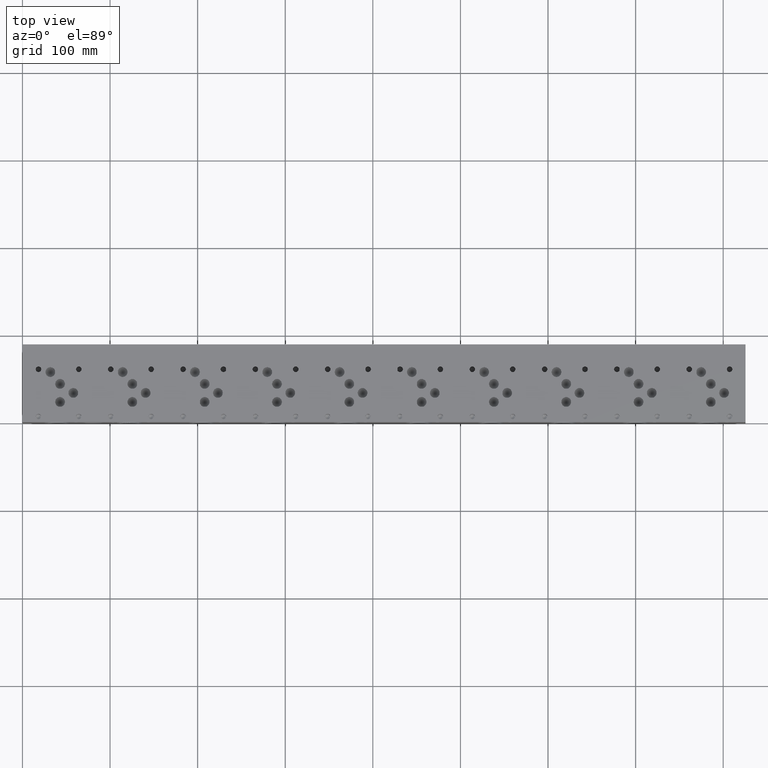
[diagram: clean part render]
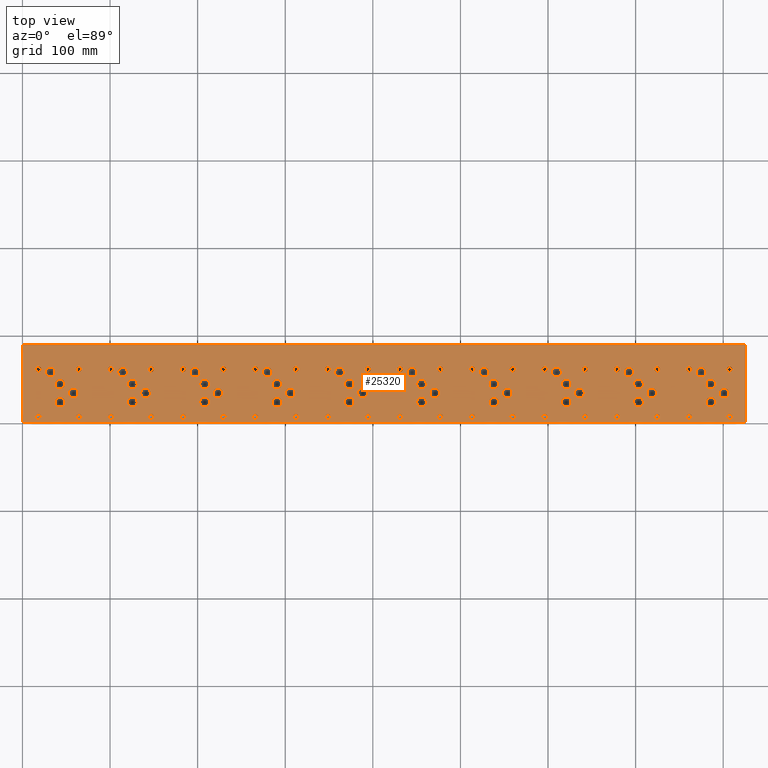
[diagram: same view with one face highlighted and labeled with its STEP entity id]
A machine part, top view. The second image highlights one B-rep face of the part: STEP entity #25320.
In plain terms, the highlighted planar face has unit normal (0, 0, 1).
Its self-contained STEP definition (entity closure, byte-faithful):
#1230=CIRCLE('',#26670,3.175);
#1231=CIRCLE('',#26671,3.175);
#1237=CIRCLE('',#26681,3.175);
#1238=CIRCLE('',#26682,3.175);
#1244=CIRCLE('',#26692,3.175);
#1245=CIRCLE('',#26693,3.175);
#1251=CIRCLE('',#26703,3.175);
#1252=CIRCLE('',#26704,3.175);
#1258=CIRCLE('',#26714,3.175);
#1259=CIRCLE('',#26715,3.175);
#1265=CIRCLE('',#26725,3.175);
#1266=CIRCLE('',#26726,3.175);
#1272=CIRCLE('',#26736,3.175);
#1273=CIRCLE('',#26737,3.175);
#1279=CIRCLE('',#26747,3.175);
#1280=CIRCLE('',#26748,3.175);
#1286=CIRCLE('',#26758,3.175);
#1287=CIRCLE('',#26759,3.175);
#1293=CIRCLE('',#26769,3.175);
#1294=CIRCLE('',#26770,3.175);
#1300=CIRCLE('',#26780,3.175);
#1301=CIRCLE('',#26781,3.175);
#1307=CIRCLE('',#26791,3.175);
#1308=CIRCLE('',#26792,3.175);
#1314=CIRCLE('',#26802,3.175);
#1315=CIRCLE('',#26803,3.175);
#1321=CIRCLE('',#26813,3.175);
#1322=CIRCLE('',#26814,3.175);
#1328=CIRCLE('',#26824,3.175);
#1329=CIRCLE('',#26825,3.175);
#1335=CIRCLE('',#26835,3.175);
#1336=CIRCLE('',#26836,3.175);
#1342=CIRCLE('',#26846,3.175);
#1343=CIRCLE('',#26847,3.175);
#1349=CIRCLE('',#26857,3.175);
#1350=CIRCLE('',#26858,3.175);
#1356=CIRCLE('',#26868,3.175);
#1357=CIRCLE('',#26869,3.175);
#1363=CIRCLE('',#26879,3.175);
#1364=CIRCLE('',#26880,3.175);
#1370=CIRCLE('',#26890,3.175);
#1371=CIRCLE('',#26891,3.175);
#1377=CIRCLE('',#26901,3.175);
#1378=CIRCLE('',#26902,3.175);
#1384=CIRCLE('',#26912,3.175);
#1385=CIRCLE('',#26913,3.175);
#1391=CIRCLE('',#26923,3.175);
#1392=CIRCLE('',#26924,3.175);
#1398=CIRCLE('',#26934,3.175);
#1399=CIRCLE('',#26935,3.175);
#1405=CIRCLE('',#26945,3.175);
#1406=CIRCLE('',#26946,3.175);
#1412=CIRCLE('',#26956,3.175);
#1413=CIRCLE('',#26957,3.175);
#1419=CIRCLE('',#26967,3.175);
#1420=CIRCLE('',#26968,3.175);
#1426=CIRCLE('',#26978,3.175);
#1427=CIRCLE('',#26979,3.175);
#1433=CIRCLE('',#26989,3.175);
#1434=CIRCLE('',#26990,3.175);
#1440=CIRCLE('',#27000,3.175);
#1441=CIRCLE('',#27001,3.175);
#1447=CIRCLE('',#27011,3.175);
#1448=CIRCLE('',#27012,3.175);
#1454=CIRCLE('',#27022,3.175);
#1455=CIRCLE('',#27023,3.175);
#1461=CIRCLE('',#27033,3.175);
#1462=CIRCLE('',#27034,3.175);
#1468=CIRCLE('',#27044,3.175);
#1469=CIRCLE('',#27045,3.175);
#1475=CIRCLE('',#27055,3.175);
#1476=CIRCLE('',#27056,3.175);
#1479=CIRCLE('',#27062,5.5626);
#1480=CIRCLE('',#27063,5.5626);
#1483=CIRCLE('',#27068,5.5626);
#1484=CIRCLE('',#27069,5.5626);
#1487=CIRCLE('',#27074,5.5626);
#1488=CIRCLE('',#27075,5.5626);
#1491=CIRCLE('',#27080,5.5626);
#1492=CIRCLE('',#27081,5.5626);
#1495=CIRCLE('',#27086,5.5626);
#1496=CIRCLE('',#27087,5.5626);
#1499=CIRCLE('',#27092,5.5626);
#1500=CIRCLE('',#27093,5.5626);
#1503=CIRCLE('',#27098,5.5626);
#1504=CIRCLE('',#27099,5.5626);
#1507=CIRCLE('',#27104,5.5626);
#1508=CIRCLE('',#27105,5.5626);
#1511=CIRCLE('',#27110,5.5626);
#1512=CIRCLE('',#27111,5.5626);
#1515=CIRCLE('',#27116,5.5626);
#1516=CIRCLE('',#27117,5.5626);
#1519=CIRCLE('',#27122,5.5626);
#1520=CIRCLE('',#27123,5.5626);
#1523=CIRCLE('',#27128,5.5626);
#1524=CIRCLE('',#27129,5.5626);
#1527=CIRCLE('',#27134,5.5626);
#1528=CIRCLE('',#27135,5.5626);
#1531=CIRCLE('',#27140,5.5626);
#1532=CIRCLE('',#27141,5.5626);
#1535=CIRCLE('',#27146,5.5626);
#1536=CIRCLE('',#27147,5.5626);
#1539=CIRCLE('',#27152,5.5626);
#1540=CIRCLE('',#27153,5.5626);
#1543=CIRCLE('',#27158,5.5626);
#1544=CIRCLE('',#27159,5.5626);
#1547=CIRCLE('',#27164,5.5626);
#1548=CIRCLE('',#27165,5.5626);
#1551=CIRCLE('',#27170,5.5626);
#1552=CIRCLE('',#27171,5.5626);
#1555=CIRCLE('',#27176,5.5626);
#1556=CIRCLE('',#27177,5.5626);
#1559=CIRCLE('',#27182,5.5626);
#1560=CIRCLE('',#27183,5.5626);
#1563=CIRCLE('',#27188,5.5626);
#1564=CIRCLE('',#27189,5.5626);
#1567=CIRCLE('',#27194,5.5626);
#1568=CIRCLE('',#27195,5.5626);
#1571=CIRCLE('',#27200,5.5626);
#1572=CIRCLE('',#27201,5.5626);
#1575=CIRCLE('',#27206,5.5626);
#1576=CIRCLE('',#27207,5.5626);
#1579=CIRCLE('',#27212,5.5626);
#1580=CIRCLE('',#27213,5.5626);
#1583=CIRCLE('',#27218,5.5626);
#1584=CIRCLE('',#27219,5.5626);
#1587=CIRCLE('',#27224,5.5626);
#1588=CIRCLE('',#27225,5.5626);
#1591=CIRCLE('',#27230,5.5626);
#1592=CIRCLE('',#27231,5.5626);
#1595=CIRCLE('',#27236,5.5626);
#1596=CIRCLE('',#27237,5.5626);
#1599=CIRCLE('',#27242,5.5626);
#1600=CIRCLE('',#27243,5.5626);
#1603=CIRCLE('',#27248,5.5626);
#1604=CIRCLE('',#27249,5.5626);
#1607=CIRCLE('',#27254,5.5626);
#1608=CIRCLE('',#27255,5.5626);
#1611=CIRCLE('',#27260,5.5626);
#1612=CIRCLE('',#27261,5.5626);
#1615=CIRCLE('',#27266,5.5626);
#1616=CIRCLE('',#27267,5.5626);
#1619=CIRCLE('',#27272,5.5626);
#1620=CIRCLE('',#27273,5.5626);
#1623=CIRCLE('',#27278,5.5626);
#1624=CIRCLE('',#27279,5.5626);
#1627=CIRCLE('',#27284,5.5626);
#1628=CIRCLE('',#27285,5.5626);
#1631=CIRCLE('',#27290,5.5626);
#1632=CIRCLE('',#27291,5.5626);
#1635=CIRCLE('',#27296,5.5626);
#1636=CIRCLE('',#27297,5.5626);
#1642=CIRCLE('',#27306,3.175);
#1643=CIRCLE('',#27307,3.175);
#1649=CIRCLE('',#27317,3.175);
#1650=CIRCLE('',#27318,3.175);
#1656=CIRCLE('',#27328,3.175);
#1657=CIRCLE('',#27329,3.175);
#1663=CIRCLE('',#27339,3.175);
#1664=CIRCLE('',#27340,3.175);
#2406=FACE_BOUND('',#5356,.T.);
#2407=FACE_BOUND('',#5357,.T.);
#2408=FACE_BOUND('',#5358,.T.);
#2409=FACE_BOUND('',#5359,.T.);
#2410=FACE_BOUND('',#5360,.T.);
#2411=FACE_BOUND('',#5361,.T.);
#2412=FACE_BOUND('',#5362,.T.);
#2413=FACE_BOUND('',#5363,.T.);
#2414=FACE_BOUND('',#5364,.T.);
#2415=FACE_BOUND('',#5365,.T.);
#2416=FACE_BOUND('',#5366,.T.);
#2417=FACE_BOUND('',#5367,.T.);
#2418=FACE_BOUND('',#5368,.T.);
#2419=FACE_BOUND('',#5369,.T.);
#2420=FACE_BOUND('',#5370,.T.);
#2421=FACE_BOUND('',#5371,.T.);
#2422=FACE_BOUND('',#5372,.T.);
#2423=FACE_BOUND('',#5373,.T.);
#2424=FACE_BOUND('',#5374,.T.);
#2425=FACE_BOUND('',#5375,.T.);
#2426=FACE_BOUND('',#5376,.T.);
#2427=FACE_BOUND('',#5377,.T.);
#2428=FACE_BOUND('',#5378,.T.);
#2429=FACE_BOUND('',#5379,.T.);
#2430=FACE_BOUND('',#5380,.T.);
#2431=FACE_BOUND('',#5381,.T.);
#2432=FACE_BOUND('',#5382,.T.);
#2433=FACE_BOUND('',#5383,.T.);
#2434=FACE_BOUND('',#5384,.T.);
#2435=FACE_BOUND('',#5385,.T.);
#2436=FACE_BOUND('',#5386,.T.);
#2437=FACE_BOUND('',#5387,.T.);
#2438=FACE_BOUND('',#5388,.T.);
#2439=FACE_BOUND('',#5389,.T.);
#2440=FACE_BOUND('',#5390,.T.);
#2441=FACE_BOUND('',#5391,.T.);
#2442=FACE_BOUND('',#5392,.T.);
#2443=FACE_BOUND('',#5393,.T.);
#2444=FACE_BOUND('',#5394,.T.);
#2445=FACE_BOUND('',#5395,.T.);
#2446=FACE_BOUND('',#5396,.T.);
#2447=FACE_BOUND('',#5397,.T.);
#2448=FACE_BOUND('',#5398,.T.);
#2449=FACE_BOUND('',#5399,.T.);
#2450=FACE_BOUND('',#5400,.T.);
#2451=FACE_BOUND('',#5401,.T.);
#2452=FACE_BOUND('',#5402,.T.);
#2453=FACE_BOUND('',#5403,.T.);
#2454=FACE_BOUND('',#5404,.T.);
#2455=FACE_BOUND('',#5405,.T.);
#2456=FACE_BOUND('',#5406,.T.);
#2457=FACE_BOUND('',#5407,.T.);
#2458=FACE_BOUND('',#5408,.T.);
#2459=FACE_BOUND('',#5409,.T.);
#2460=FACE_BOUND('',#5410,.T.);
#2461=FACE_BOUND('',#5411,.T.);
#2462=FACE_BOUND('',#5412,.T.);
#2463=FACE_BOUND('',#5413,.T.);
#2464=FACE_BOUND('',#5414,.T.);
#2465=FACE_BOUND('',#5415,.T.);
#2466=FACE_BOUND('',#5416,.T.);
#2467=FACE_BOUND('',#5417,.T.);
#2468=FACE_BOUND('',#5418,.T.);
#2469=FACE_BOUND('',#5419,.T.);
#2470=FACE_BOUND('',#5420,.T.);
#2471=FACE_BOUND('',#5421,.T.);
#2472=FACE_BOUND('',#5422,.T.);
#2473=FACE_BOUND('',#5423,.T.);
#2474=FACE_BOUND('',#5424,.T.);
#2475=FACE_BOUND('',#5425,.T.);
#2476=FACE_BOUND('',#5426,.T.);
#2477=FACE_BOUND('',#5427,.T.);
#2478=FACE_BOUND('',#5428,.T.);
#2479=FACE_BOUND('',#5429,.T.);
#2480=FACE_BOUND('',#5430,.T.);
#2481=FACE_BOUND('',#5431,.T.);
#2482=FACE_BOUND('',#5432,.T.);
#2483=FACE_BOUND('',#5433,.T.);
#2484=FACE_BOUND('',#5434,.T.);
#2485=FACE_BOUND('',#5435,.T.);
#3816=FACE_OUTER_BOUND('',#5355,.T.);
#5355=EDGE_LOOP('',(#22438,#22439,#22440,#22441));
#5356=EDGE_LOOP('',(#22442,#22443));
#5357=EDGE_LOOP('',(#22444,#22445));
#5358=EDGE_LOOP('',(#22446,#22447));
#5359=EDGE_LOOP('',(#22448,#22449));
#5360=EDGE_LOOP('',(#22450,#22451));
#5361=EDGE_LOOP('',(#22452,#22453));
#5362=EDGE_LOOP('',(#22454,#22455));
#5363=EDGE_LOOP('',(#22456,#22457));
#5364=EDGE_LOOP('',(#22458,#22459));
#5365=EDGE_LOOP('',(#22460,#22461));
#5366=EDGE_LOOP('',(#22462,#22463));
#5367=EDGE_LOOP('',(#22464,#22465));
#5368=EDGE_LOOP('',(#22466,#22467));
#5369=EDGE_LOOP('',(#22468,#22469));
#5370=EDGE_LOOP('',(#22470,#22471));
#5371=EDGE_LOOP('',(#22472,#22473));
#5372=EDGE_LOOP('',(#22474,#22475));
#5373=EDGE_LOOP('',(#22476,#22477));
#5374=EDGE_LOOP('',(#22478,#22479));
#5375=EDGE_LOOP('',(#22480,#22481));
#5376=EDGE_LOOP('',(#22482,#22483));
#5377=EDGE_LOOP('',(#22484,#22485));
#5378=EDGE_LOOP('',(#22486,#22487));
#5379=EDGE_LOOP('',(#22488,#22489));
#5380=EDGE_LOOP('',(#22490,#22491));
#5381=EDGE_LOOP('',(#22492,#22493));
#5382=EDGE_LOOP('',(#22494,#22495));
#5383=EDGE_LOOP('',(#22496,#22497));
#5384=EDGE_LOOP('',(#22498,#22499));
#5385=EDGE_LOOP('',(#22500,#22501));
#5386=EDGE_LOOP('',(#22502,#22503));
#5387=EDGE_LOOP('',(#22504,#22505));
#5388=EDGE_LOOP('',(#22506,#22507));
#5389=EDGE_LOOP('',(#22508,#22509));
#5390=EDGE_LOOP('',(#22510,#22511));
#5391=EDGE_LOOP('',(#22512,#22513));
#5392=EDGE_LOOP('',(#22514,#22515));
#5393=EDGE_LOOP('',(#22516,#22517));
#5394=EDGE_LOOP('',(#22518,#22519));
#5395=EDGE_LOOP('',(#22520,#22521));
#5396=EDGE_LOOP('',(#22522,#22523));
#5397=EDGE_LOOP('',(#22524,#22525));
#5398=EDGE_LOOP('',(#22526,#22527));
#5399=EDGE_LOOP('',(#22528,#22529));
#5400=EDGE_LOOP('',(#22530,#22531));
#5401=EDGE_LOOP('',(#22532,#22533));
#5402=EDGE_LOOP('',(#22534,#22535));
#5403=EDGE_LOOP('',(#22536,#22537));
#5404=EDGE_LOOP('',(#22538,#22539));
#5405=EDGE_LOOP('',(#22540,#22541));
#5406=EDGE_LOOP('',(#22542,#22543));
#5407=EDGE_LOOP('',(#22544,#22545));
#5408=EDGE_LOOP('',(#22546,#22547));
#5409=EDGE_LOOP('',(#22548,#22549));
#5410=EDGE_LOOP('',(#22550,#22551));
#5411=EDGE_LOOP('',(#22552,#22553));
#5412=EDGE_LOOP('',(#22554,#22555));
#5413=EDGE_LOOP('',(#22556,#22557));
#5414=EDGE_LOOP('',(#22558,#22559));
#5415=EDGE_LOOP('',(#22560,#22561));
#5416=EDGE_LOOP('',(#22562,#22563));
#5417=EDGE_LOOP('',(#22564,#22565));
#5418=EDGE_LOOP('',(#22566,#22567));
#5419=EDGE_LOOP('',(#22568,#22569));
#5420=EDGE_LOOP('',(#22570,#22571));
#5421=EDGE_LOOP('',(#22572,#22573));
#5422=EDGE_LOOP('',(#22574,#22575));
#5423=EDGE_LOOP('',(#22576,#22577));
#5424=EDGE_LOOP('',(#22578,#22579));
#5425=EDGE_LOOP('',(#22580,#22581));
#5426=EDGE_LOOP('',(#22582,#22583));
#5427=EDGE_LOOP('',(#22584,#22585));
#5428=EDGE_LOOP('',(#22586,#22587));
#5429=EDGE_LOOP('',(#22588,#22589));
#5430=EDGE_LOOP('',(#22590,#22591));
#5431=EDGE_LOOP('',(#22592,#22593));
#5432=EDGE_LOOP('',(#22594,#22595));
#5433=EDGE_LOOP('',(#22596,#22597));
#5434=EDGE_LOOP('',(#22598,#22599));
#5435=EDGE_LOOP('',(#22600,#22601));
#5472=LINE('',#33497,#7520);
#6880=LINE('',#40452,#8928);
#6914=LINE('',#40674,#8962);
#7484=LINE('',#44236,#9532);
#7520=VECTOR('',#27411,10.);
#8928=VECTOR('',#29809,10.);
#8962=VECTOR('',#29879,10.);
#9532=VECTOR('',#33413,10.);
#9557=VERTEX_POINT('',#33494);
#9558=VERTEX_POINT('',#33496);
#10866=VERTEX_POINT('',#40450);
#10908=VERTEX_POINT('',#40673);
#11505=VERTEX_POINT('',#42848);
#11506=VERTEX_POINT('',#42849);
#11513=VERTEX_POINT('',#42870);
#11514=VERTEX_POINT('',#42871);
#11521=VERTEX_POINT('',#42892);
#11522=VERTEX_POINT('',#42893);
#11529=VERTEX_POINT('',#42914);
#11530=VERTEX_POINT('',#42915);
#11537=VERTEX_POINT('',#42936);
#11538=VERTEX_POINT('',#42937);
#11545=VERTEX_POINT('',#42958);
#11546=VERTEX_POINT('',#42959);
#11553=VERTEX_POINT('',#42980);
#11554=VERTEX_POINT('',#42981);
#11561=VERTEX_POINT('',#43002);
#11562=VERTEX_POINT('',#43003);
#11569=VERTEX_POINT('',#43024);
#11570=VERTEX_POINT('',#43025);
#11577=VERTEX_POINT('',#43046);
#11578=VERTEX_POINT('',#43047);
#11585=VERTEX_POINT('',#43068);
#11586=VERTEX_POINT('',#43069);
#11593=VERTEX_POINT('',#43090);
#11594=VERTEX_POINT('',#43091);
#11601=VERTEX_POINT('',#43112);
#11602=VERTEX_POINT('',#43113);
#11609=VERTEX_POINT('',#43134);
#11610=VERTEX_POINT('',#43135);
#11617=VERTEX_POINT('',#43156);
#11618=VERTEX_POINT('',#43157);
#11625=VERTEX_POINT('',#43178);
#11626=VERTEX_POINT('',#43179);
#11633=VERTEX_POINT('',#43200);
#11634=VERTEX_POINT('',#43201);
#11641=VERTEX_POINT('',#43222);
#11642=VERTEX_POINT('',#43223);
#11649=VERTEX_POINT('',#43244);
#11650=VERTEX_POINT('',#43245);
#11657=VERTEX_POINT('',#43266);
#11658=VERTEX_POINT('',#43267);
#11665=VERTEX_POINT('',#43288);
#11666=VERTEX_POINT('',#43289);
#11673=VERTEX_POINT('',#43310);
#11674=VERTEX_POINT('',#43311);
#11681=VERTEX_POINT('',#43332);
#11682=VERTEX_POINT('',#43333);
#11689=VERTEX_POINT('',#43354);
#11690=VERTEX_POINT('',#43355);
#11697=VERTEX_POINT('',#43376);
#11698=VERTEX_POINT('',#43377);
#11705=VERTEX_POINT('',#43398);
#11706=VERTEX_POINT('',#43399);
#11713=VERTEX_POINT('',#43420);
#11714=VERTEX_POINT('',#43421);
#11721=VERTEX_POINT('',#43442);
#11722=VERTEX_POINT('',#43443);
#11729=VERTEX_POINT('',#43464);
#11730=VERTEX_POINT('',#43465);
#11737=VERTEX_POINT('',#43486);
#11738=VERTEX_POINT('',#43487);
#11745=VERTEX_POINT('',#43508);
#11746=VERTEX_POINT('',#43509);
#11753=VERTEX_POINT('',#43530);
#11754=VERTEX_POINT('',#43531);
#11761=VERTEX_POINT('',#43552);
#11762=VERTEX_POINT('',#43553);
#11769=VERTEX_POINT('',#43574);
#11770=VERTEX_POINT('',#43575);
#11777=VERTEX_POINT('',#43596);
#11778=VERTEX_POINT('',#43597);
#11785=VERTEX_POINT('',#43618);
#11786=VERTEX_POINT('',#43619);
#11790=VERTEX_POINT('',#43633);
#11791=VERTEX_POINT('',#43634);
#11795=VERTEX_POINT('',#43646);
#11796=VERTEX_POINT('',#43647);
#11800=VERTEX_POINT('',#43659);
#11801=VERTEX_POINT('',#43660);
#11805=VERTEX_POINT('',#43672);
#11806=VERTEX_POINT('',#43673);
#11810=VERTEX_POINT('',#43685);
#11811=VERTEX_POINT('',#43686);
#11815=VERTEX_POINT('',#43698);
#11816=VERTEX_POINT('',#43699);
#11820=VERTEX_POINT('',#43711);
#11821=VERTEX_POINT('',#43712);
#11825=VERTEX_POINT('',#43724);
#11826=VERTEX_POINT('',#43725);
#11830=VERTEX_POINT('',#43737);
#11831=VERTEX_POINT('',#43738);
#11835=VERTEX_POINT('',#43750);
#11836=VERTEX_POINT('',#43751);
#11840=VERTEX_POINT('',#43763);
#11841=VERTEX_POINT('',#43764);
#11845=VERTEX_POINT('',#43776);
#11846=VERTEX_POINT('',#43777);
#11850=VERTEX_POINT('',#43789);
#11851=VERTEX_POINT('',#43790);
#11855=VERTEX_POINT('',#43802);
#11856=VERTEX_POINT('',#43803);
#11860=VERTEX_POINT('',#43815);
#11861=VERTEX_POINT('',#43816);
#11865=VERTEX_POINT('',#43828);
#11866=VERTEX_POINT('',#43829);
#11870=VERTEX_POINT('',#43841);
#11871=VERTEX_POINT('',#43842);
#11875=VERTEX_POINT('',#43854);
#11876=VERTEX_POINT('',#43855);
#11880=VERTEX_POINT('',#43867);
#11881=VERTEX_POINT('',#43868);
#11885=VERTEX_POINT('',#43880);
#11886=VERTEX_POINT('',#43881);
#11890=VERTEX_POINT('',#43893);
#11891=VERTEX_POINT('',#43894);
#11895=VERTEX_POINT('',#43906);
#11896=VERTEX_POINT('',#43907);
#11900=VERTEX_POINT('',#43919);
#11901=VERTEX_POINT('',#43920);
#11905=VERTEX_POINT('',#43932);
#11906=VERTEX_POINT('',#43933);
#11910=VERTEX_POINT('',#43945);
#11911=VERTEX_POINT('',#43946);
#11915=VERTEX_POINT('',#43958);
#11916=VERTEX_POINT('',#43959);
#11920=VERTEX_POINT('',#43971);
#11921=VERTEX_POINT('',#43972);
#11925=VERTEX_POINT('',#43984);
#11926=VERTEX_POINT('',#43985);
#11930=VERTEX_POINT('',#43997);
#11931=VERTEX_POINT('',#43998);
#11935=VERTEX_POINT('',#44010);
#11936=VERTEX_POINT('',#44011);
#11940=VERTEX_POINT('',#44023);
#11941=VERTEX_POINT('',#44024);
#11945=VERTEX_POINT('',#44036);
#11946=VERTEX_POINT('',#44037);
#11950=VERTEX_POINT('',#44049);
#11951=VERTEX_POINT('',#44050);
#11955=VERTEX_POINT('',#44062);
#11956=VERTEX_POINT('',#44063);
#11960=VERTEX_POINT('',#44075);
#11961=VERTEX_POINT('',#44076);
#11965=VERTEX_POINT('',#44088);
#11966=VERTEX_POINT('',#44089);
#11970=VERTEX_POINT('',#44101);
#11971=VERTEX_POINT('',#44102);
#11975=VERTEX_POINT('',#44114);
#11976=VERTEX_POINT('',#44115);
#11980=VERTEX_POINT('',#44127);
#11981=VERTEX_POINT('',#44128);
#11985=VERTEX_POINT('',#44140);
#11986=VERTEX_POINT('',#44141);
#11993=VERTEX_POINT('',#44160);
#11994=VERTEX_POINT('',#44161);
#12001=VERTEX_POINT('',#44182);
#12002=VERTEX_POINT('',#44183);
#12009=VERTEX_POINT('',#44204);
#12010=VERTEX_POINT('',#44205);
#12017=VERTEX_POINT('',#44226);
#12018=VERTEX_POINT('',#44227);
#12054=EDGE_CURVE('',#9558,#9557,#5472,.T.);
#13978=EDGE_CURVE('',#9557,#10866,#6880,.T.);
#14036=EDGE_CURVE('',#10908,#9558,#6914,.T.);
#14912=EDGE_CURVE('',#11505,#11506,#1230,.T.);
#14913=EDGE_CURVE('',#11506,#11505,#1231,.T.);
#14922=EDGE_CURVE('',#11513,#11514,#1237,.T.);
#14923=EDGE_CURVE('',#11514,#11513,#1238,.T.);
#14932=EDGE_CURVE('',#11521,#11522,#1244,.T.);
#14933=EDGE_CURVE('',#11522,#11521,#1245,.T.);
#14942=EDGE_CURVE('',#11529,#11530,#1251,.T.);
#14943=EDGE_CURVE('',#11530,#11529,#1252,.T.);
#14952=EDGE_CURVE('',#11537,#11538,#1258,.T.);
#14953=EDGE_CURVE('',#11538,#11537,#1259,.T.);
#14962=EDGE_CURVE('',#11545,#11546,#1265,.T.);
#14963=EDGE_CURVE('',#11546,#11545,#1266,.T.);
#14972=EDGE_CURVE('',#11553,#11554,#1272,.T.);
#14973=EDGE_CURVE('',#11554,#11553,#1273,.T.);
#14982=EDGE_CURVE('',#11561,#11562,#1279,.T.);
#14983=EDGE_CURVE('',#11562,#11561,#1280,.T.);
#14992=EDGE_CURVE('',#11569,#11570,#1286,.T.);
#14993=EDGE_CURVE('',#11570,#11569,#1287,.T.);
#15002=EDGE_CURVE('',#11577,#11578,#1293,.T.);
#15003=EDGE_CURVE('',#11578,#11577,#1294,.T.);
#15012=EDGE_CURVE('',#11585,#11586,#1300,.T.);
#15013=EDGE_CURVE('',#11586,#11585,#1301,.T.);
#15022=EDGE_CURVE('',#11593,#11594,#1307,.T.);
#15023=EDGE_CURVE('',#11594,#11593,#1308,.T.);
#15032=EDGE_CURVE('',#11601,#11602,#1314,.T.);
#15033=EDGE_CURVE('',#11602,#11601,#1315,.T.);
#15042=EDGE_CURVE('',#11609,#11610,#1321,.T.);
#15043=EDGE_CURVE('',#11610,#11609,#1322,.T.);
#15052=EDGE_CURVE('',#11617,#11618,#1328,.T.);
#15053=EDGE_CURVE('',#11618,#11617,#1329,.T.);
#15062=EDGE_CURVE('',#11625,#11626,#1335,.T.);
#15063=EDGE_CURVE('',#11626,#11625,#1336,.T.);
#15072=EDGE_CURVE('',#11633,#11634,#1342,.T.);
#15073=EDGE_CURVE('',#11634,#11633,#1343,.T.);
#15082=EDGE_CURVE('',#11641,#11642,#1349,.T.);
#15083=EDGE_CURVE('',#11642,#11641,#1350,.T.);
#15092=EDGE_CURVE('',#11649,#11650,#1356,.T.);
#15093=EDGE_CURVE('',#11650,#11649,#1357,.T.);
#15102=EDGE_CURVE('',#11657,#11658,#1363,.T.);
#15103=EDGE_CURVE('',#11658,#11657,#1364,.T.);
#15112=EDGE_CURVE('',#11665,#11666,#1370,.T.);
#15113=EDGE_CURVE('',#11666,#11665,#1371,.T.);
#15122=EDGE_CURVE('',#11673,#11674,#1377,.T.);
#15123=EDGE_CURVE('',#11674,#11673,#1378,.T.);
#15132=EDGE_CURVE('',#11681,#11682,#1384,.T.);
#15133=EDGE_CURVE('',#11682,#11681,#1385,.T.);
#15142=EDGE_CURVE('',#11689,#11690,#1391,.T.);
#15143=EDGE_CURVE('',#11690,#11689,#1392,.T.);
#15152=EDGE_CURVE('',#11697,#11698,#1398,.T.);
#15153=EDGE_CURVE('',#11698,#11697,#1399,.T.);
#15162=EDGE_CURVE('',#11705,#11706,#1405,.T.);
#15163=EDGE_CURVE('',#11706,#11705,#1406,.T.);
#15172=EDGE_CURVE('',#11713,#11714,#1412,.T.);
#15173=EDGE_CURVE('',#11714,#11713,#1413,.T.);
#15182=EDGE_CURVE('',#11721,#11722,#1419,.T.);
#15183=EDGE_CURVE('',#11722,#11721,#1420,.T.);
#15192=EDGE_CURVE('',#11729,#11730,#1426,.T.);
#15193=EDGE_CURVE('',#11730,#11729,#1427,.T.);
#15202=EDGE_CURVE('',#11737,#11738,#1433,.T.);
#15203=EDGE_CURVE('',#11738,#11737,#1434,.T.);
#15212=EDGE_CURVE('',#11745,#11746,#1440,.T.);
#15213=EDGE_CURVE('',#11746,#11745,#1441,.T.);
#15222=EDGE_CURVE('',#11753,#11754,#1447,.T.);
#15223=EDGE_CURVE('',#11754,#11753,#1448,.T.);
#15232=EDGE_CURVE('',#11761,#11762,#1454,.T.);
#15233=EDGE_CURVE('',#11762,#11761,#1455,.T.);
#15242=EDGE_CURVE('',#11769,#11770,#1461,.T.);
#15243=EDGE_CURVE('',#11770,#11769,#1462,.T.);
#15252=EDGE_CURVE('',#11777,#11778,#1468,.T.);
#15253=EDGE_CURVE('',#11778,#11777,#1469,.T.);
#15262=EDGE_CURVE('',#11785,#11786,#1475,.T.);
#15263=EDGE_CURVE('',#11786,#11785,#1476,.T.);
#15269=EDGE_CURVE('',#11790,#11791,#1479,.T.);
#15270=EDGE_CURVE('',#11791,#11790,#1480,.T.);
#15275=EDGE_CURVE('',#11795,#11796,#1483,.T.);
#15276=EDGE_CURVE('',#11796,#11795,#1484,.T.);
#15281=EDGE_CURVE('',#11800,#11801,#1487,.T.);
#15282=EDGE_CURVE('',#11801,#11800,#1488,.T.);
#15287=EDGE_CURVE('',#11805,#11806,#1491,.T.);
#15288=EDGE_CURVE('',#11806,#11805,#1492,.T.);
#15293=EDGE_CURVE('',#11810,#11811,#1495,.T.);
#15294=EDGE_CURVE('',#11811,#11810,#1496,.T.);
#15299=EDGE_CURVE('',#11815,#11816,#1499,.T.);
#15300=EDGE_CURVE('',#11816,#11815,#1500,.T.);
#15305=EDGE_CURVE('',#11820,#11821,#1503,.T.);
#15306=EDGE_CURVE('',#11821,#11820,#1504,.T.);
#15311=EDGE_CURVE('',#11825,#11826,#1507,.T.);
#15312=EDGE_CURVE('',#11826,#11825,#1508,.T.);
#15317=EDGE_CURVE('',#11830,#11831,#1511,.T.);
#15318=EDGE_CURVE('',#11831,#11830,#1512,.T.);
#15323=EDGE_CURVE('',#11835,#11836,#1515,.T.);
#15324=EDGE_CURVE('',#11836,#11835,#1516,.T.);
#15329=EDGE_CURVE('',#11840,#11841,#1519,.T.);
#15330=EDGE_CURVE('',#11841,#11840,#1520,.T.);
#15335=EDGE_CURVE('',#11845,#11846,#1523,.T.);
#15336=EDGE_CURVE('',#11846,#11845,#1524,.T.);
#15341=EDGE_CURVE('',#11850,#11851,#1527,.T.);
#15342=EDGE_CURVE('',#11851,#11850,#1528,.T.);
#15347=EDGE_CURVE('',#11855,#11856,#1531,.T.);
#15348=EDGE_CURVE('',#11856,#11855,#1532,.T.);
#15353=EDGE_CURVE('',#11860,#11861,#1535,.T.);
#15354=EDGE_CURVE('',#11861,#11860,#1536,.T.);
#15359=EDGE_CURVE('',#11865,#11866,#1539,.T.);
#15360=EDGE_CURVE('',#11866,#11865,#1540,.T.);
#15365=EDGE_CURVE('',#11870,#11871,#1543,.T.);
#15366=EDGE_CURVE('',#11871,#11870,#1544,.T.);
#15371=EDGE_CURVE('',#11875,#11876,#1547,.T.);
#15372=EDGE_CURVE('',#11876,#11875,#1548,.T.);
#15377=EDGE_CURVE('',#11880,#11881,#1551,.T.);
#15378=EDGE_CURVE('',#11881,#11880,#1552,.T.);
#15383=EDGE_CURVE('',#11885,#11886,#1555,.T.);
#15384=EDGE_CURVE('',#11886,#11885,#1556,.T.);
#15389=EDGE_CURVE('',#11890,#11891,#1559,.T.);
#15390=EDGE_CURVE('',#11891,#11890,#1560,.T.);
#15395=EDGE_CURVE('',#11895,#11896,#1563,.T.);
#15396=EDGE_CURVE('',#11896,#11895,#1564,.T.);
#15401=EDGE_CURVE('',#11900,#11901,#1567,.T.);
#15402=EDGE_CURVE('',#11901,#11900,#1568,.T.);
#15407=EDGE_CURVE('',#11905,#11906,#1571,.T.);
#15408=EDGE_CURVE('',#11906,#11905,#1572,.T.);
#15413=EDGE_CURVE('',#11910,#11911,#1575,.T.);
#15414=EDGE_CURVE('',#11911,#11910,#1576,.T.);
#15419=EDGE_CURVE('',#11915,#11916,#1579,.T.);
#15420=EDGE_CURVE('',#11916,#11915,#1580,.T.);
#15425=EDGE_CURVE('',#11920,#11921,#1583,.T.);
#15426=EDGE_CURVE('',#11921,#11920,#1584,.T.);
#15431=EDGE_CURVE('',#11925,#11926,#1587,.T.);
#15432=EDGE_CURVE('',#11926,#11925,#1588,.T.);
#15437=EDGE_CURVE('',#11930,#11931,#1591,.T.);
#15438=EDGE_CURVE('',#11931,#11930,#1592,.T.);
#15443=EDGE_CURVE('',#11935,#11936,#1595,.T.);
#15444=EDGE_CURVE('',#11936,#11935,#1596,.T.);
#15449=EDGE_CURVE('',#11940,#11941,#1599,.T.);
#15450=EDGE_CURVE('',#11941,#11940,#1600,.T.);
#15455=EDGE_CURVE('',#11945,#11946,#1603,.T.);
#15456=EDGE_CURVE('',#11946,#11945,#1604,.T.);
#15461=EDGE_CURVE('',#11950,#11951,#1607,.T.);
#15462=EDGE_CURVE('',#11951,#11950,#1608,.T.);
#15467=EDGE_CURVE('',#11955,#11956,#1611,.T.);
#15468=EDGE_CURVE('',#11956,#11955,#1612,.T.);
#15473=EDGE_CURVE('',#11960,#11961,#1615,.T.);
#15474=EDGE_CURVE('',#11961,#11960,#1616,.T.);
#15479=EDGE_CURVE('',#11965,#11966,#1619,.T.);
#15480=EDGE_CURVE('',#11966,#11965,#1620,.T.);
#15485=EDGE_CURVE('',#11970,#11971,#1623,.T.);
#15486=EDGE_CURVE('',#11971,#11970,#1624,.T.);
#15491=EDGE_CURVE('',#11975,#11976,#1627,.T.);
#15492=EDGE_CURVE('',#11976,#11975,#1628,.T.);
#15497=EDGE_CURVE('',#11980,#11981,#1631,.T.);
#15498=EDGE_CURVE('',#11981,#11980,#1632,.T.);
#15503=EDGE_CURVE('',#11985,#11986,#1635,.T.);
#15504=EDGE_CURVE('',#11986,#11985,#1636,.T.);
#15512=EDGE_CURVE('',#11993,#11994,#1642,.T.);
#15513=EDGE_CURVE('',#11994,#11993,#1643,.T.);
#15522=EDGE_CURVE('',#12001,#12002,#1649,.T.);
#15523=EDGE_CURVE('',#12002,#12001,#1650,.T.);
#15532=EDGE_CURVE('',#12009,#12010,#1656,.T.);
#15533=EDGE_CURVE('',#12010,#12009,#1657,.T.);
#15542=EDGE_CURVE('',#12017,#12018,#1663,.T.);
#15543=EDGE_CURVE('',#12018,#12017,#1664,.T.);
#15547=EDGE_CURVE('',#10866,#10908,#7484,.T.);
#22438=ORIENTED_EDGE('',*,*,#12054,.T.);
#22439=ORIENTED_EDGE('',*,*,#13978,.T.);
#22440=ORIENTED_EDGE('',*,*,#15547,.T.);
#22441=ORIENTED_EDGE('',*,*,#14036,.T.);
#22442=ORIENTED_EDGE('',*,*,#14912,.T.);
#22443=ORIENTED_EDGE('',*,*,#14913,.T.);
#22444=ORIENTED_EDGE('',*,*,#14922,.T.);
#22445=ORIENTED_EDGE('',*,*,#14923,.T.);
#22446=ORIENTED_EDGE('',*,*,#14932,.T.);
#22447=ORIENTED_EDGE('',*,*,#14933,.T.);
#22448=ORIENTED_EDGE('',*,*,#14942,.T.);
#22449=ORIENTED_EDGE('',*,*,#14943,.T.);
#22450=ORIENTED_EDGE('',*,*,#14952,.T.);
#22451=ORIENTED_EDGE('',*,*,#14953,.T.);
#22452=ORIENTED_EDGE('',*,*,#14962,.T.);
#22453=ORIENTED_EDGE('',*,*,#14963,.T.);
#22454=ORIENTED_EDGE('',*,*,#14972,.T.);
#22455=ORIENTED_EDGE('',*,*,#14973,.T.);
#22456=ORIENTED_EDGE('',*,*,#14982,.T.);
#22457=ORIENTED_EDGE('',*,*,#14983,.T.);
#22458=ORIENTED_EDGE('',*,*,#14992,.T.);
#22459=ORIENTED_EDGE('',*,*,#14993,.T.);
#22460=ORIENTED_EDGE('',*,*,#15002,.T.);
#22461=ORIENTED_EDGE('',*,*,#15003,.T.);
#22462=ORIENTED_EDGE('',*,*,#15012,.T.);
#22463=ORIENTED_EDGE('',*,*,#15013,.T.);
#22464=ORIENTED_EDGE('',*,*,#15022,.T.);
#22465=ORIENTED_EDGE('',*,*,#15023,.T.);
#22466=ORIENTED_EDGE('',*,*,#15032,.T.);
#22467=ORIENTED_EDGE('',*,*,#15033,.T.);
#22468=ORIENTED_EDGE('',*,*,#15042,.T.);
#22469=ORIENTED_EDGE('',*,*,#15043,.T.);
#22470=ORIENTED_EDGE('',*,*,#15052,.T.);
#22471=ORIENTED_EDGE('',*,*,#15053,.T.);
#22472=ORIENTED_EDGE('',*,*,#15062,.T.);
#22473=ORIENTED_EDGE('',*,*,#15063,.T.);
#22474=ORIENTED_EDGE('',*,*,#15072,.T.);
#22475=ORIENTED_EDGE('',*,*,#15073,.T.);
#22476=ORIENTED_EDGE('',*,*,#15082,.T.);
#22477=ORIENTED_EDGE('',*,*,#15083,.T.);
#22478=ORIENTED_EDGE('',*,*,#15092,.T.);
#22479=ORIENTED_EDGE('',*,*,#15093,.T.);
#22480=ORIENTED_EDGE('',*,*,#15102,.T.);
#22481=ORIENTED_EDGE('',*,*,#15103,.T.);
#22482=ORIENTED_EDGE('',*,*,#15112,.T.);
#22483=ORIENTED_EDGE('',*,*,#15113,.T.);
#22484=ORIENTED_EDGE('',*,*,#15122,.T.);
#22485=ORIENTED_EDGE('',*,*,#15123,.T.);
#22486=ORIENTED_EDGE('',*,*,#15132,.T.);
#22487=ORIENTED_EDGE('',*,*,#15133,.T.);
#22488=ORIENTED_EDGE('',*,*,#15142,.T.);
#22489=ORIENTED_EDGE('',*,*,#15143,.T.);
#22490=ORIENTED_EDGE('',*,*,#15152,.T.);
#22491=ORIENTED_EDGE('',*,*,#15153,.T.);
#22492=ORIENTED_EDGE('',*,*,#15162,.T.);
#22493=ORIENTED_EDGE('',*,*,#15163,.T.);
#22494=ORIENTED_EDGE('',*,*,#15172,.T.);
#22495=ORIENTED_EDGE('',*,*,#15173,.T.);
#22496=ORIENTED_EDGE('',*,*,#15182,.T.);
#22497=ORIENTED_EDGE('',*,*,#15183,.T.);
#22498=ORIENTED_EDGE('',*,*,#15192,.T.);
#22499=ORIENTED_EDGE('',*,*,#15193,.T.);
#22500=ORIENTED_EDGE('',*,*,#15202,.T.);
#22501=ORIENTED_EDGE('',*,*,#15203,.T.);
#22502=ORIENTED_EDGE('',*,*,#15212,.T.);
#22503=ORIENTED_EDGE('',*,*,#15213,.T.);
#22504=ORIENTED_EDGE('',*,*,#15222,.T.);
#22505=ORIENTED_EDGE('',*,*,#15223,.T.);
#22506=ORIENTED_EDGE('',*,*,#15232,.T.);
#22507=ORIENTED_EDGE('',*,*,#15233,.T.);
#22508=ORIENTED_EDGE('',*,*,#15242,.T.);
#22509=ORIENTED_EDGE('',*,*,#15243,.T.);
#22510=ORIENTED_EDGE('',*,*,#15252,.T.);
#22511=ORIENTED_EDGE('',*,*,#15253,.T.);
#22512=ORIENTED_EDGE('',*,*,#15262,.T.);
#22513=ORIENTED_EDGE('',*,*,#15263,.T.);
#22514=ORIENTED_EDGE('',*,*,#15269,.T.);
#22515=ORIENTED_EDGE('',*,*,#15270,.T.);
#22516=ORIENTED_EDGE('',*,*,#15275,.T.);
#22517=ORIENTED_EDGE('',*,*,#15276,.T.);
#22518=ORIENTED_EDGE('',*,*,#15281,.T.);
#22519=ORIENTED_EDGE('',*,*,#15282,.T.);
#22520=ORIENTED_EDGE('',*,*,#15287,.T.);
#22521=ORIENTED_EDGE('',*,*,#15288,.T.);
#22522=ORIENTED_EDGE('',*,*,#15293,.T.);
#22523=ORIENTED_EDGE('',*,*,#15294,.T.);
#22524=ORIENTED_EDGE('',*,*,#15299,.T.);
#22525=ORIENTED_EDGE('',*,*,#15300,.T.);
#22526=ORIENTED_EDGE('',*,*,#15305,.T.);
#22527=ORIENTED_EDGE('',*,*,#15306,.T.);
#22528=ORIENTED_EDGE('',*,*,#15311,.T.);
#22529=ORIENTED_EDGE('',*,*,#15312,.T.);
#22530=ORIENTED_EDGE('',*,*,#15317,.T.);
#22531=ORIENTED_EDGE('',*,*,#15318,.T.);
#22532=ORIENTED_EDGE('',*,*,#15323,.T.);
#22533=ORIENTED_EDGE('',*,*,#15324,.T.);
#22534=ORIENTED_EDGE('',*,*,#15329,.T.);
#22535=ORIENTED_EDGE('',*,*,#15330,.T.);
#22536=ORIENTED_EDGE('',*,*,#15335,.T.);
#22537=ORIENTED_EDGE('',*,*,#15336,.T.);
#22538=ORIENTED_EDGE('',*,*,#15341,.T.);
#22539=ORIENTED_EDGE('',*,*,#15342,.T.);
#22540=ORIENTED_EDGE('',*,*,#15347,.T.);
#22541=ORIENTED_EDGE('',*,*,#15348,.T.);
#22542=ORIENTED_EDGE('',*,*,#15353,.T.);
#22543=ORIENTED_EDGE('',*,*,#15354,.T.);
#22544=ORIENTED_EDGE('',*,*,#15359,.T.);
#22545=ORIENTED_EDGE('',*,*,#15360,.T.);
#22546=ORIENTED_EDGE('',*,*,#15365,.T.);
#22547=ORIENTED_EDGE('',*,*,#15366,.T.);
#22548=ORIENTED_EDGE('',*,*,#15371,.T.);
#22549=ORIENTED_EDGE('',*,*,#15372,.T.);
#22550=ORIENTED_EDGE('',*,*,#15377,.T.);
#22551=ORIENTED_EDGE('',*,*,#15378,.T.);
#22552=ORIENTED_EDGE('',*,*,#15383,.T.);
#22553=ORIENTED_EDGE('',*,*,#15384,.T.);
#22554=ORIENTED_EDGE('',*,*,#15389,.T.);
#22555=ORIENTED_EDGE('',*,*,#15390,.T.);
#22556=ORIENTED_EDGE('',*,*,#15395,.T.);
#22557=ORIENTED_EDGE('',*,*,#15396,.T.);
#22558=ORIENTED_EDGE('',*,*,#15401,.T.);
#22559=ORIENTED_EDGE('',*,*,#15402,.T.);
#22560=ORIENTED_EDGE('',*,*,#15407,.T.);
#22561=ORIENTED_EDGE('',*,*,#15408,.T.);
#22562=ORIENTED_EDGE('',*,*,#15413,.T.);
#22563=ORIENTED_EDGE('',*,*,#15414,.T.);
#22564=ORIENTED_EDGE('',*,*,#15419,.T.);
#22565=ORIENTED_EDGE('',*,*,#15420,.T.);
#22566=ORIENTED_EDGE('',*,*,#15425,.T.);
#22567=ORIENTED_EDGE('',*,*,#15426,.T.);
#22568=ORIENTED_EDGE('',*,*,#15431,.T.);
#22569=ORIENTED_EDGE('',*,*,#15432,.T.);
#22570=ORIENTED_EDGE('',*,*,#15437,.T.);
#22571=ORIENTED_EDGE('',*,*,#15438,.T.);
#22572=ORIENTED_EDGE('',*,*,#15443,.T.);
#22573=ORIENTED_EDGE('',*,*,#15444,.T.);
#22574=ORIENTED_EDGE('',*,*,#15449,.T.);
#22575=ORIENTED_EDGE('',*,*,#15450,.T.);
#22576=ORIENTED_EDGE('',*,*,#15455,.T.);
#22577=ORIENTED_EDGE('',*,*,#15456,.T.);
#22578=ORIENTED_EDGE('',*,*,#15461,.T.);
#22579=ORIENTED_EDGE('',*,*,#15462,.T.);
#22580=ORIENTED_EDGE('',*,*,#15467,.T.);
#22581=ORIENTED_EDGE('',*,*,#15468,.T.);
#22582=ORIENTED_EDGE('',*,*,#15473,.T.);
#22583=ORIENTED_EDGE('',*,*,#15474,.T.);
#22584=ORIENTED_EDGE('',*,*,#15479,.T.);
#22585=ORIENTED_EDGE('',*,*,#15480,.T.);
#22586=ORIENTED_EDGE('',*,*,#15485,.T.);
#22587=ORIENTED_EDGE('',*,*,#15486,.T.);
#22588=ORIENTED_EDGE('',*,*,#15491,.T.);
#22589=ORIENTED_EDGE('',*,*,#15492,.T.);
#22590=ORIENTED_EDGE('',*,*,#15497,.T.);
#22591=ORIENTED_EDGE('',*,*,#15498,.T.);
#22592=ORIENTED_EDGE('',*,*,#15503,.T.);
#22593=ORIENTED_EDGE('',*,*,#15504,.T.);
#22594=ORIENTED_EDGE('',*,*,#15512,.T.);
#22595=ORIENTED_EDGE('',*,*,#15513,.T.);
#22596=ORIENTED_EDGE('',*,*,#15522,.T.);
#22597=ORIENTED_EDGE('',*,*,#15523,.T.);
#22598=ORIENTED_EDGE('',*,*,#15532,.T.);
#22599=ORIENTED_EDGE('',*,*,#15533,.T.);
#22600=ORIENTED_EDGE('',*,*,#15542,.T.);
#22601=ORIENTED_EDGE('',*,*,#15543,.T.);
#23232=PLANE('',#27346);
#25320=ADVANCED_FACE('',(#3816,#2406,#2407,#2408,#2409,#2410,#2411,#2412,
#2413,#2414,#2415,#2416,#2417,#2418,#2419,#2420,#2421,#2422,#2423,#2424,
#2425,#2426,#2427,#2428,#2429,#2430,#2431,#2432,#2433,#2434,#2435,#2436,
#2437,#2438,#2439,#2440,#2441,#2442,#2443,#2444,#2445,#2446,#2447,#2448,
#2449,#2450,#2451,#2452,#2453,#2454,#2455,#2456,#2457,#2458,#2459,#2460,
#2461,#2462,#2463,#2464,#2465,#2466,#2467,#2468,#2469,#2470,#2471,#2472,
#2473,#2474,#2475,#2476,#2477,#2478,#2479,#2480,#2481,#2482,#2483,#2484,
#2485),#23232,.T.);
#26670=AXIS2_PLACEMENT_3D('',#42850,#31865,#31866);
#26671=AXIS2_PLACEMENT_3D('',#42851,#31867,#31868);
#26681=AXIS2_PLACEMENT_3D('',#42872,#31890,#31891);
#26682=AXIS2_PLACEMENT_3D('',#42873,#31892,#31893);
#26692=AXIS2_PLACEMENT_3D('',#42894,#31915,#31916);
#26693=AXIS2_PLACEMENT_3D('',#42895,#31917,#31918);
#26703=AXIS2_PLACEMENT_3D('',#42916,#31940,#31941);
#26704=AXIS2_PLACEMENT_3D('',#42917,#31942,#31943);
#26714=AXIS2_PLACEMENT_3D('',#42938,#31965,#31966);
#26715=AXIS2_PLACEMENT_3D('',#42939,#31967,#31968);
#26725=AXIS2_PLACEMENT_3D('',#42960,#31990,#31991);
#26726=AXIS2_PLACEMENT_3D('',#42961,#31992,#31993);
#26736=AXIS2_PLACEMENT_3D('',#42982,#32015,#32016);
#26737=AXIS2_PLACEMENT_3D('',#42983,#32017,#32018);
#26747=AXIS2_PLACEMENT_3D('',#43004,#32040,#32041);
#26748=AXIS2_PLACEMENT_3D('',#43005,#32042,#32043);
#26758=AXIS2_PLACEMENT_3D('',#43026,#32065,#32066);
#26759=AXIS2_PLACEMENT_3D('',#43027,#32067,#32068);
#26769=AXIS2_PLACEMENT_3D('',#43048,#32090,#32091);
#26770=AXIS2_PLACEMENT_3D('',#43049,#32092,#32093);
#26780=AXIS2_PLACEMENT_3D('',#43070,#32115,#32116);
#26781=AXIS2_PLACEMENT_3D('',#43071,#32117,#32118);
#26791=AXIS2_PLACEMENT_3D('',#43092,#32140,#32141);
#26792=AXIS2_PLACEMENT_3D('',#43093,#32142,#32143);
#26802=AXIS2_PLACEMENT_3D('',#43114,#32165,#32166);
#26803=AXIS2_PLACEMENT_3D('',#43115,#32167,#32168);
#26813=AXIS2_PLACEMENT_3D('',#43136,#32190,#32191);
#26814=AXIS2_PLACEMENT_3D('',#43137,#32192,#32193);
#26824=AXIS2_PLACEMENT_3D('',#43158,#32215,#32216);
#26825=AXIS2_PLACEMENT_3D('',#43159,#32217,#32218);
#26835=AXIS2_PLACEMENT_3D('',#43180,#32240,#32241);
#26836=AXIS2_PLACEMENT_3D('',#43181,#32242,#32243);
#26846=AXIS2_PLACEMENT_3D('',#43202,#32265,#32266);
#26847=AXIS2_PLACEMENT_3D('',#43203,#32267,#32268);
#26857=AXIS2_PLACEMENT_3D('',#43224,#32290,#32291);
#26858=AXIS2_PLACEMENT_3D('',#43225,#32292,#32293);
#26868=AXIS2_PLACEMENT_3D('',#43246,#32315,#32316);
#26869=AXIS2_PLACEMENT_3D('',#43247,#32317,#32318);
#26879=AXIS2_PLACEMENT_3D('',#43268,#32340,#32341);
#26880=AXIS2_PLACEMENT_3D('',#43269,#32342,#32343);
#26890=AXIS2_PLACEMENT_3D('',#43290,#32365,#32366);
#26891=AXIS2_PLACEMENT_3D('',#43291,#32367,#32368);
#26901=AXIS2_PLACEMENT_3D('',#43312,#32390,#32391);
#26902=AXIS2_PLACEMENT_3D('',#43313,#32392,#32393);
#26912=AXIS2_PLACEMENT_3D('',#43334,#32415,#32416);
#26913=AXIS2_PLACEMENT_3D('',#43335,#32417,#32418);
#26923=AXIS2_PLACEMENT_3D('',#43356,#32440,#32441);
#26924=AXIS2_PLACEMENT_3D('',#43357,#32442,#32443);
#26934=AXIS2_PLACEMENT_3D('',#43378,#32465,#32466);
#26935=AXIS2_PLACEMENT_3D('',#43379,#32467,#32468);
#26945=AXIS2_PLACEMENT_3D('',#43400,#32490,#32491);
#26946=AXIS2_PLACEMENT_3D('',#43401,#32492,#32493);
#26956=AXIS2_PLACEMENT_3D('',#43422,#32515,#32516);
#26957=AXIS2_PLACEMENT_3D('',#43423,#32517,#32518);
#26967=AXIS2_PLACEMENT_3D('',#43444,#32540,#32541);
#26968=AXIS2_PLACEMENT_3D('',#43445,#32542,#32543);
#26978=AXIS2_PLACEMENT_3D('',#43466,#32565,#32566);
#26979=AXIS2_PLACEMENT_3D('',#43467,#32567,#32568);
#26989=AXIS2_PLACEMENT_3D('',#43488,#32590,#32591);
#26990=AXIS2_PLACEMENT_3D('',#43489,#32592,#32593);
#27000=AXIS2_PLACEMENT_3D('',#43510,#32615,#32616);
#27001=AXIS2_PLACEMENT_3D('',#43511,#32617,#32618);
#27011=AXIS2_PLACEMENT_3D('',#43532,#32640,#32641);
#27012=AXIS2_PLACEMENT_3D('',#43533,#32642,#32643);
#27022=AXIS2_PLACEMENT_3D('',#43554,#32665,#32666);
#27023=AXIS2_PLACEMENT_3D('',#43555,#32667,#32668);
#27033=AXIS2_PLACEMENT_3D('',#43576,#32690,#32691);
#27034=AXIS2_PLACEMENT_3D('',#43577,#32692,#32693);
#27044=AXIS2_PLACEMENT_3D('',#43598,#32715,#32716);
#27045=AXIS2_PLACEMENT_3D('',#43599,#32717,#32718);
#27055=AXIS2_PLACEMENT_3D('',#43620,#32740,#32741);
#27056=AXIS2_PLACEMENT_3D('',#43621,#32742,#32743);
#27062=AXIS2_PLACEMENT_3D('',#43635,#32757,#32758);
#27063=AXIS2_PLACEMENT_3D('',#43636,#32759,#32760);
#27068=AXIS2_PLACEMENT_3D('',#43648,#32771,#32772);
#27069=AXIS2_PLACEMENT_3D('',#43649,#32773,#32774);
#27074=AXIS2_PLACEMENT_3D('',#43661,#32785,#32786);
#27075=AXIS2_PLACEMENT_3D('',#43662,#32787,#32788);
#27080=AXIS2_PLACEMENT_3D('',#43674,#32799,#32800);
#27081=AXIS2_PLACEMENT_3D('',#43675,#32801,#32802);
#27086=AXIS2_PLACEMENT_3D('',#43687,#32813,#32814);
#27087=AXIS2_PLACEMENT_3D('',#43688,#32815,#32816);
#27092=AXIS2_PLACEMENT_3D('',#43700,#32827,#32828);
#27093=AXIS2_PLACEMENT_3D('',#43701,#32829,#32830);
#27098=AXIS2_PLACEMENT_3D('',#43713,#32841,#32842);
#27099=AXIS2_PLACEMENT_3D('',#43714,#32843,#32844);
#27104=AXIS2_PLACEMENT_3D('',#43726,#32855,#32856);
#27105=AXIS2_PLACEMENT_3D('',#43727,#32857,#32858);
#27110=AXIS2_PLACEMENT_3D('',#43739,#32869,#32870);
#27111=AXIS2_PLACEMENT_3D('',#43740,#32871,#32872);
#27116=AXIS2_PLACEMENT_3D('',#43752,#32883,#32884);
#27117=AXIS2_PLACEMENT_3D('',#43753,#32885,#32886);
#27122=AXIS2_PLACEMENT_3D('',#43765,#32897,#32898);
#27123=AXIS2_PLACEMENT_3D('',#43766,#32899,#32900);
#27128=AXIS2_PLACEMENT_3D('',#43778,#32911,#32912);
#27129=AXIS2_PLACEMENT_3D('',#43779,#32913,#32914);
#27134=AXIS2_PLACEMENT_3D('',#43791,#32925,#32926);
#27135=AXIS2_PLACEMENT_3D('',#43792,#32927,#32928);
#27140=AXIS2_PLACEMENT_3D('',#43804,#32939,#32940);
#27141=AXIS2_PLACEMENT_3D('',#43805,#32941,#32942);
#27146=AXIS2_PLACEMENT_3D('',#43817,#32953,#32954);
#27147=AXIS2_PLACEMENT_3D('',#43818,#32955,#32956);
#27152=AXIS2_PLACEMENT_3D('',#43830,#32967,#32968);
#27153=AXIS2_PLACEMENT_3D('',#43831,#32969,#32970);
#27158=AXIS2_PLACEMENT_3D('',#43843,#32981,#32982);
#27159=AXIS2_PLACEMENT_3D('',#43844,#32983,#32984);
#27164=AXIS2_PLACEMENT_3D('',#43856,#32995,#32996);
#27165=AXIS2_PLACEMENT_3D('',#43857,#32997,#32998);
#27170=AXIS2_PLACEMENT_3D('',#43869,#33009,#33010);
#27171=AXIS2_PLACEMENT_3D('',#43870,#33011,#33012);
#27176=AXIS2_PLACEMENT_3D('',#43882,#33023,#33024);
#27177=AXIS2_PLACEMENT_3D('',#43883,#33025,#33026);
#27182=AXIS2_PLACEMENT_3D('',#43895,#33037,#33038);
#27183=AXIS2_PLACEMENT_3D('',#43896,#33039,#33040);
#27188=AXIS2_PLACEMENT_3D('',#43908,#33051,#33052);
#27189=AXIS2_PLACEMENT_3D('',#43909,#33053,#33054);
#27194=AXIS2_PLACEMENT_3D('',#43921,#33065,#33066);
#27195=AXIS2_PLACEMENT_3D('',#43922,#33067,#33068);
#27200=AXIS2_PLACEMENT_3D('',#43934,#33079,#33080);
#27201=AXIS2_PLACEMENT_3D('',#43935,#33081,#33082);
#27206=AXIS2_PLACEMENT_3D('',#43947,#33093,#33094);
#27207=AXIS2_PLACEMENT_3D('',#43948,#33095,#33096);
#27212=AXIS2_PLACEMENT_3D('',#43960,#33107,#33108);
#27213=AXIS2_PLACEMENT_3D('',#43961,#33109,#33110);
#27218=AXIS2_PLACEMENT_3D('',#43973,#33121,#33122);
#27219=AXIS2_PLACEMENT_3D('',#43974,#33123,#33124);
#27224=AXIS2_PLACEMENT_3D('',#43986,#33135,#33136);
#27225=AXIS2_PLACEMENT_3D('',#43987,#33137,#33138);
#27230=AXIS2_PLACEMENT_3D('',#43999,#33149,#33150);
#27231=AXIS2_PLACEMENT_3D('',#44000,#33151,#33152);
#27236=AXIS2_PLACEMENT_3D('',#44012,#33163,#33164);
#27237=AXIS2_PLACEMENT_3D('',#44013,#33165,#33166);
#27242=AXIS2_PLACEMENT_3D('',#44025,#33177,#33178);
#27243=AXIS2_PLACEMENT_3D('',#44026,#33179,#33180);
#27248=AXIS2_PLACEMENT_3D('',#44038,#33191,#33192);
#27249=AXIS2_PLACEMENT_3D('',#44039,#33193,#33194);
#27254=AXIS2_PLACEMENT_3D('',#44051,#33205,#33206);
#27255=AXIS2_PLACEMENT_3D('',#44052,#33207,#33208);
#27260=AXIS2_PLACEMENT_3D('',#44064,#33219,#33220);
#27261=AXIS2_PLACEMENT_3D('',#44065,#33221,#33222);
#27266=AXIS2_PLACEMENT_3D('',#44077,#33233,#33234);
#27267=AXIS2_PLACEMENT_3D('',#44078,#33235,#33236);
#27272=AXIS2_PLACEMENT_3D('',#44090,#33247,#33248);
#27273=AXIS2_PLACEMENT_3D('',#44091,#33249,#33250);
#27278=AXIS2_PLACEMENT_3D('',#44103,#33261,#33262);
#27279=AXIS2_PLACEMENT_3D('',#44104,#33263,#33264);
#27284=AXIS2_PLACEMENT_3D('',#44116,#33275,#33276);
#27285=AXIS2_PLACEMENT_3D('',#44117,#33277,#33278);
#27290=AXIS2_PLACEMENT_3D('',#44129,#33289,#33290);
#27291=AXIS2_PLACEMENT_3D('',#44130,#33291,#33292);
#27296=AXIS2_PLACEMENT_3D('',#44142,#33303,#33304);
#27297=AXIS2_PLACEMENT_3D('',#44143,#33305,#33306);
#27306=AXIS2_PLACEMENT_3D('',#44162,#33325,#33326);
#27307=AXIS2_PLACEMENT_3D('',#44163,#33327,#33328);
#27317=AXIS2_PLACEMENT_3D('',#44184,#33350,#33351);
#27318=AXIS2_PLACEMENT_3D('',#44185,#33352,#33353);
#27328=AXIS2_PLACEMENT_3D('',#44206,#33375,#33376);
#27329=AXIS2_PLACEMENT_3D('',#44207,#33377,#33378);
#27339=AXIS2_PLACEMENT_3D('',#44228,#33400,#33401);
#27340=AXIS2_PLACEMENT_3D('',#44229,#33402,#33403);
#27346=AXIS2_PLACEMENT_3D('',#44239,#33418,#33419);
#27411=DIRECTION('',(1.,0.,0.));
#29809=DIRECTION('',(0.,1.,0.));
#29879=DIRECTION('',(0.,-1.,0.));
#31865=DIRECTION('center_axis',(0.,0.,-1.));
#31866=DIRECTION('ref_axis',(1.,0.,0.));
#31867=DIRECTION('center_axis',(0.,0.,-1.));
#31868=DIRECTION('ref_axis',(1.,0.,0.));
#31890=DIRECTION('center_axis',(0.,0.,-1.));
#31891=DIRECTION('ref_axis',(1.,0.,0.));
#31892=DIRECTION('center_axis',(0.,0.,-1.));
#31893=DIRECTION('ref_axis',(1.,0.,0.));
#31915=DIRECTION('center_axis',(0.,0.,-1.));
#31916=DIRECTION('ref_axis',(1.,0.,0.));
#31917=DIRECTION('center_axis',(0.,0.,-1.));
#31918=DIRECTION('ref_axis',(1.,0.,0.));
#31940=DIRECTION('center_axis',(0.,0.,-1.));
#31941=DIRECTION('ref_axis',(1.,0.,0.));
#31942=DIRECTION('center_axis',(0.,0.,-1.));
#31943=DIRECTION('ref_axis',(1.,0.,0.));
#31965=DIRECTION('center_axis',(0.,0.,-1.));
#31966=DIRECTION('ref_axis',(1.,0.,0.));
#31967=DIRECTION('center_axis',(0.,0.,-1.));
#31968=DIRECTION('ref_axis',(1.,0.,0.));
#31990=DIRECTION('center_axis',(0.,0.,-1.));
#31991=DIRECTION('ref_axis',(1.,0.,0.));
#31992=DIRECTION('center_axis',(0.,0.,-1.));
#31993=DIRECTION('ref_axis',(1.,0.,0.));
#32015=DIRECTION('center_axis',(0.,0.,-1.));
#32016=DIRECTION('ref_axis',(1.,0.,0.));
#32017=DIRECTION('center_axis',(0.,0.,-1.));
#32018=DIRECTION('ref_axis',(1.,0.,0.));
#32040=DIRECTION('center_axis',(0.,0.,-1.));
#32041=DIRECTION('ref_axis',(1.,0.,0.));
#32042=DIRECTION('center_axis',(0.,0.,-1.));
#32043=DIRECTION('ref_axis',(1.,0.,0.));
#32065=DIRECTION('center_axis',(0.,0.,-1.));
#32066=DIRECTION('ref_axis',(1.,0.,0.));
#32067=DIRECTION('center_axis',(0.,0.,-1.));
#32068=DIRECTION('ref_axis',(1.,0.,0.));
#32090=DIRECTION('center_axis',(0.,0.,-1.));
#32091=DIRECTION('ref_axis',(1.,0.,0.));
#32092=DIRECTION('center_axis',(0.,0.,-1.));
#32093=DIRECTION('ref_axis',(1.,0.,0.));
#32115=DIRECTION('center_axis',(0.,0.,-1.));
#32116=DIRECTION('ref_axis',(1.,0.,0.));
#32117=DIRECTION('center_axis',(0.,0.,-1.));
#32118=DIRECTION('ref_axis',(1.,0.,0.));
#32140=DIRECTION('center_axis',(0.,0.,-1.));
#32141=DIRECTION('ref_axis',(1.,0.,0.));
#32142=DIRECTION('center_axis',(0.,0.,-1.));
#32143=DIRECTION('ref_axis',(1.,0.,0.));
#32165=DIRECTION('center_axis',(0.,0.,-1.));
#32166=DIRECTION('ref_axis',(1.,0.,0.));
#32167=DIRECTION('center_axis',(0.,0.,-1.));
#32168=DIRECTION('ref_axis',(1.,0.,0.));
#32190=DIRECTION('center_axis',(0.,0.,-1.));
#32191=DIRECTION('ref_axis',(1.,0.,0.));
#32192=DIRECTION('center_axis',(0.,0.,-1.));
#32193=DIRECTION('ref_axis',(1.,0.,0.));
#32215=DIRECTION('center_axis',(0.,0.,-1.));
#32216=DIRECTION('ref_axis',(1.,0.,0.));
#32217=DIRECTION('center_axis',(0.,0.,-1.));
#32218=DIRECTION('ref_axis',(1.,0.,0.));
#32240=DIRECTION('center_axis',(0.,0.,-1.));
#32241=DIRECTION('ref_axis',(1.,0.,0.));
#32242=DIRECTION('center_axis',(0.,0.,-1.));
#32243=DIRECTION('ref_axis',(1.,0.,0.));
#32265=DIRECTION('center_axis',(0.,0.,-1.));
#32266=DIRECTION('ref_axis',(1.,0.,0.));
#32267=DIRECTION('center_axis',(0.,0.,-1.));
#32268=DIRECTION('ref_axis',(1.,0.,0.));
#32290=DIRECTION('center_axis',(0.,0.,-1.));
#32291=DIRECTION('ref_axis',(1.,0.,0.));
#32292=DIRECTION('center_axis',(0.,0.,-1.));
#32293=DIRECTION('ref_axis',(1.,0.,0.));
#32315=DIRECTION('center_axis',(0.,0.,-1.));
#32316=DIRECTION('ref_axis',(1.,0.,0.));
#32317=DIRECTION('center_axis',(0.,0.,-1.));
#32318=DIRECTION('ref_axis',(1.,0.,0.));
#32340=DIRECTION('center_axis',(0.,0.,-1.));
#32341=DIRECTION('ref_axis',(1.,0.,0.));
#32342=DIRECTION('center_axis',(0.,0.,-1.));
#32343=DIRECTION('ref_axis',(1.,0.,0.));
#32365=DIRECTION('center_axis',(0.,0.,-1.));
#32366=DIRECTION('ref_axis',(1.,0.,0.));
#32367=DIRECTION('center_axis',(0.,0.,-1.));
#32368=DIRECTION('ref_axis',(1.,0.,0.));
#32390=DIRECTION('center_axis',(0.,0.,-1.));
#32391=DIRECTION('ref_axis',(1.,0.,0.));
#32392=DIRECTION('center_axis',(0.,0.,-1.));
#32393=DIRECTION('ref_axis',(1.,0.,0.));
#32415=DIRECTION('center_axis',(0.,0.,-1.));
#32416=DIRECTION('ref_axis',(1.,0.,0.));
#32417=DIRECTION('center_axis',(0.,0.,-1.));
#32418=DIRECTION('ref_axis',(1.,0.,0.));
#32440=DIRECTION('center_axis',(0.,0.,-1.));
#32441=DIRECTION('ref_axis',(1.,0.,0.));
#32442=DIRECTION('center_axis',(0.,0.,-1.));
#32443=DIRECTION('ref_axis',(1.,0.,0.));
#32465=DIRECTION('center_axis',(0.,0.,-1.));
#32466=DIRECTION('ref_axis',(1.,0.,0.));
#32467=DIRECTION('center_axis',(0.,0.,-1.));
#32468=DIRECTION('ref_axis',(1.,0.,0.));
#32490=DIRECTION('center_axis',(0.,0.,-1.));
#32491=DIRECTION('ref_axis',(1.,0.,0.));
#32492=DIRECTION('center_axis',(0.,0.,-1.));
#32493=DIRECTION('ref_axis',(1.,0.,0.));
#32515=DIRECTION('center_axis',(0.,0.,-1.));
#32516=DIRECTION('ref_axis',(1.,0.,0.));
#32517=DIRECTION('center_axis',(0.,0.,-1.));
#32518=DIRECTION('ref_axis',(1.,0.,0.));
#32540=DIRECTION('center_axis',(0.,0.,-1.));
#32541=DIRECTION('ref_axis',(1.,0.,0.));
#32542=DIRECTION('center_axis',(0.,0.,-1.));
#32543=DIRECTION('ref_axis',(1.,0.,0.));
#32565=DIRECTION('center_axis',(0.,0.,-1.));
#32566=DIRECTION('ref_axis',(1.,0.,0.));
#32567=DIRECTION('center_axis',(0.,0.,-1.));
#32568=DIRECTION('ref_axis',(1.,0.,0.));
#32590=DIRECTION('center_axis',(0.,0.,-1.));
#32591=DIRECTION('ref_axis',(1.,0.,0.));
#32592=DIRECTION('center_axis',(0.,0.,-1.));
#32593=DIRECTION('ref_axis',(1.,0.,0.));
#32615=DIRECTION('center_axis',(0.,0.,-1.));
#32616=DIRECTION('ref_axis',(1.,0.,0.));
#32617=DIRECTION('center_axis',(0.,0.,-1.));
#32618=DIRECTION('ref_axis',(1.,0.,0.));
#32640=DIRECTION('center_axis',(0.,0.,-1.));
#32641=DIRECTION('ref_axis',(1.,0.,0.));
#32642=DIRECTION('center_axis',(0.,0.,-1.));
#32643=DIRECTION('ref_axis',(1.,0.,0.));
#32665=DIRECTION('center_axis',(0.,0.,-1.));
#32666=DIRECTION('ref_axis',(1.,0.,0.));
#32667=DIRECTION('center_axis',(0.,0.,-1.));
#32668=DIRECTION('ref_axis',(1.,0.,0.));
#32690=DIRECTION('center_axis',(0.,0.,-1.));
#32691=DIRECTION('ref_axis',(1.,0.,0.));
#32692=DIRECTION('center_axis',(0.,0.,-1.));
#32693=DIRECTION('ref_axis',(1.,0.,0.));
#32715=DIRECTION('center_axis',(0.,0.,-1.));
#32716=DIRECTION('ref_axis',(1.,0.,0.));
#32717=DIRECTION('center_axis',(0.,0.,-1.));
#32718=DIRECTION('ref_axis',(1.,0.,0.));
#32740=DIRECTION('center_axis',(0.,0.,-1.));
#32741=DIRECTION('ref_axis',(1.,0.,0.));
#32742=DIRECTION('center_axis',(0.,0.,-1.));
#32743=DIRECTION('ref_axis',(1.,0.,0.));
#32757=DIRECTION('center_axis',(0.,0.,-1.));
#32758=DIRECTION('ref_axis',(1.,0.,0.));
#32759=DIRECTION('center_axis',(0.,0.,-1.));
#32760=DIRECTION('ref_axis',(1.,0.,0.));
#32771=DIRECTION('center_axis',(0.,0.,-1.));
#32772=DIRECTION('ref_axis',(1.,0.,0.));
#32773=DIRECTION('center_axis',(0.,0.,-1.));
#32774=DIRECTION('ref_axis',(1.,0.,0.));
#32785=DIRECTION('center_axis',(0.,0.,-1.));
#32786=DIRECTION('ref_axis',(1.,0.,0.));
#32787=DIRECTION('center_axis',(0.,0.,-1.));
#32788=DIRECTION('ref_axis',(1.,0.,0.));
#32799=DIRECTION('center_axis',(0.,0.,-1.));
#32800=DIRECTION('ref_axis',(1.,0.,0.));
#32801=DIRECTION('center_axis',(0.,0.,-1.));
#32802=DIRECTION('ref_axis',(1.,0.,0.));
#32813=DIRECTION('center_axis',(0.,0.,-1.));
#32814=DIRECTION('ref_axis',(1.,0.,0.));
#32815=DIRECTION('center_axis',(0.,0.,-1.));
#32816=DIRECTION('ref_axis',(1.,0.,0.));
#32827=DIRECTION('center_axis',(0.,0.,-1.));
#32828=DIRECTION('ref_axis',(1.,0.,0.));
#32829=DIRECTION('center_axis',(0.,0.,-1.));
#32830=DIRECTION('ref_axis',(1.,0.,0.));
#32841=DIRECTION('center_axis',(0.,0.,-1.));
#32842=DIRECTION('ref_axis',(1.,0.,0.));
#32843=DIRECTION('center_axis',(0.,0.,-1.));
#32844=DIRECTION('ref_axis',(1.,0.,0.));
#32855=DIRECTION('center_axis',(0.,0.,-1.));
#32856=DIRECTION('ref_axis',(1.,0.,0.));
#32857=DIRECTION('center_axis',(0.,0.,-1.));
#32858=DIRECTION('ref_axis',(1.,0.,0.));
#32869=DIRECTION('center_axis',(0.,0.,-1.));
#32870=DIRECTION('ref_axis',(1.,0.,0.));
#32871=DIRECTION('center_axis',(0.,0.,-1.));
#32872=DIRECTION('ref_axis',(1.,0.,0.));
#32883=DIRECTION('center_axis',(0.,0.,-1.));
#32884=DIRECTION('ref_axis',(1.,0.,0.));
#32885=DIRECTION('center_axis',(0.,0.,-1.));
#32886=DIRECTION('ref_axis',(1.,0.,0.));
#32897=DIRECTION('center_axis',(0.,0.,-1.));
#32898=DIRECTION('ref_axis',(1.,0.,0.));
#32899=DIRECTION('center_axis',(0.,0.,-1.));
#32900=DIRECTION('ref_axis',(1.,0.,0.));
#32911=DIRECTION('center_axis',(0.,0.,-1.));
#32912=DIRECTION('ref_axis',(1.,0.,0.));
#32913=DIRECTION('center_axis',(0.,0.,-1.));
#32914=DIRECTION('ref_axis',(1.,0.,0.));
#32925=DIRECTION('center_axis',(0.,0.,-1.));
#32926=DIRECTION('ref_axis',(1.,0.,0.));
#32927=DIRECTION('center_axis',(0.,0.,-1.));
#32928=DIRECTION('ref_axis',(1.,0.,0.));
#32939=DIRECTION('center_axis',(0.,0.,-1.));
#32940=DIRECTION('ref_axis',(1.,0.,0.));
#32941=DIRECTION('center_axis',(0.,0.,-1.));
#32942=DIRECTION('ref_axis',(1.,0.,0.));
#32953=DIRECTION('center_axis',(0.,0.,-1.));
#32954=DIRECTION('ref_axis',(1.,0.,0.));
#32955=DIRECTION('center_axis',(0.,0.,-1.));
#32956=DIRECTION('ref_axis',(1.,0.,0.));
#32967=DIRECTION('center_axis',(0.,0.,-1.));
#32968=DIRECTION('ref_axis',(1.,0.,0.));
#32969=DIRECTION('center_axis',(0.,0.,-1.));
#32970=DIRECTION('ref_axis',(1.,0.,0.));
#32981=DIRECTION('center_axis',(0.,0.,-1.));
#32982=DIRECTION('ref_axis',(1.,0.,0.));
#32983=DIRECTION('center_axis',(0.,0.,-1.));
#32984=DIRECTION('ref_axis',(1.,0.,0.));
#32995=DIRECTION('center_axis',(0.,0.,-1.));
#32996=DIRECTION('ref_axis',(1.,0.,0.));
#32997=DIRECTION('center_axis',(0.,0.,-1.));
#32998=DIRECTION('ref_axis',(1.,0.,0.));
#33009=DIRECTION('center_axis',(0.,0.,-1.));
#33010=DIRECTION('ref_axis',(1.,0.,0.));
#33011=DIRECTION('center_axis',(0.,0.,-1.));
#33012=DIRECTION('ref_axis',(1.,0.,0.));
#33023=DIRECTION('center_axis',(0.,0.,-1.));
#33024=DIRECTION('ref_axis',(1.,0.,0.));
#33025=DIRECTION('center_axis',(0.,0.,-1.));
#33026=DIRECTION('ref_axis',(1.,0.,0.));
#33037=DIRECTION('center_axis',(0.,0.,-1.));
#33038=DIRECTION('ref_axis',(1.,0.,0.));
#33039=DIRECTION('center_axis',(0.,0.,-1.));
#33040=DIRECTION('ref_axis',(1.,0.,0.));
#33051=DIRECTION('center_axis',(0.,0.,-1.));
#33052=DIRECTION('ref_axis',(1.,0.,0.));
#33053=DIRECTION('center_axis',(0.,0.,-1.));
#33054=DIRECTION('ref_axis',(1.,0.,0.));
#33065=DIRECTION('center_axis',(0.,0.,-1.));
#33066=DIRECTION('ref_axis',(1.,0.,0.));
#33067=DIRECTION('center_axis',(0.,0.,-1.));
#33068=DIRECTION('ref_axis',(1.,0.,0.));
#33079=DIRECTION('center_axis',(0.,0.,-1.));
#33080=DIRECTION('ref_axis',(1.,0.,0.));
#33081=DIRECTION('center_axis',(0.,0.,-1.));
#33082=DIRECTION('ref_axis',(1.,0.,0.));
#33093=DIRECTION('center_axis',(0.,0.,-1.));
#33094=DIRECTION('ref_axis',(1.,0.,0.));
#33095=DIRECTION('center_axis',(0.,0.,-1.));
#33096=DIRECTION('ref_axis',(1.,0.,0.));
#33107=DIRECTION('center_axis',(0.,0.,-1.));
#33108=DIRECTION('ref_axis',(1.,0.,0.));
#33109=DIRECTION('center_axis',(0.,0.,-1.));
#33110=DIRECTION('ref_axis',(1.,0.,0.));
#33121=DIRECTION('center_axis',(0.,0.,-1.));
#33122=DIRECTION('ref_axis',(1.,0.,0.));
#33123=DIRECTION('center_axis',(0.,0.,-1.));
#33124=DIRECTION('ref_axis',(1.,0.,0.));
#33135=DIRECTION('center_axis',(0.,0.,-1.));
#33136=DIRECTION('ref_axis',(1.,0.,0.));
#33137=DIRECTION('center_axis',(0.,0.,-1.));
#33138=DIRECTION('ref_axis',(1.,0.,0.));
#33149=DIRECTION('center_axis',(0.,0.,-1.));
#33150=DIRECTION('ref_axis',(1.,0.,0.));
#33151=DIRECTION('center_axis',(0.,0.,-1.));
#33152=DIRECTION('ref_axis',(1.,0.,0.));
#33163=DIRECTION('center_axis',(0.,0.,-1.));
#33164=DIRECTION('ref_axis',(1.,0.,0.));
#33165=DIRECTION('center_axis',(0.,0.,-1.));
#33166=DIRECTION('ref_axis',(1.,0.,0.));
#33177=DIRECTION('center_axis',(0.,0.,-1.));
#33178=DIRECTION('ref_axis',(1.,0.,0.));
#33179=DIRECTION('center_axis',(0.,0.,-1.));
#33180=DIRECTION('ref_axis',(1.,0.,0.));
#33191=DIRECTION('center_axis',(0.,0.,-1.));
#33192=DIRECTION('ref_axis',(1.,0.,0.));
#33193=DIRECTION('center_axis',(0.,0.,-1.));
#33194=DIRECTION('ref_axis',(1.,0.,0.));
#33205=DIRECTION('center_axis',(0.,0.,-1.));
#33206=DIRECTION('ref_axis',(1.,0.,0.));
#33207=DIRECTION('center_axis',(0.,0.,-1.));
#33208=DIRECTION('ref_axis',(1.,0.,0.));
#33219=DIRECTION('center_axis',(0.,0.,-1.));
#33220=DIRECTION('ref_axis',(1.,0.,0.));
#33221=DIRECTION('center_axis',(0.,0.,-1.));
#33222=DIRECTION('ref_axis',(1.,0.,0.));
#33233=DIRECTION('center_axis',(0.,0.,-1.));
#33234=DIRECTION('ref_axis',(1.,0.,0.));
#33235=DIRECTION('center_axis',(0.,0.,-1.));
#33236=DIRECTION('ref_axis',(1.,0.,0.));
#33247=DIRECTION('center_axis',(0.,0.,-1.));
#33248=DIRECTION('ref_axis',(1.,0.,0.));
#33249=DIRECTION('center_axis',(0.,0.,-1.));
#33250=DIRECTION('ref_axis',(1.,0.,0.));
#33261=DIRECTION('center_axis',(0.,0.,-1.));
#33262=DIRECTION('ref_axis',(1.,0.,0.));
#33263=DIRECTION('center_axis',(0.,0.,-1.));
#33264=DIRECTION('ref_axis',(1.,0.,0.));
#33275=DIRECTION('center_axis',(0.,0.,-1.));
#33276=DIRECTION('ref_axis',(1.,0.,0.));
#33277=DIRECTION('center_axis',(0.,0.,-1.));
#33278=DIRECTION('ref_axis',(1.,0.,0.));
#33289=DIRECTION('center_axis',(0.,0.,-1.));
#33290=DIRECTION('ref_axis',(1.,0.,0.));
#33291=DIRECTION('center_axis',(0.,0.,-1.));
#33292=DIRECTION('ref_axis',(1.,0.,0.));
#33303=DIRECTION('center_axis',(0.,0.,-1.));
#33304=DIRECTION('ref_axis',(1.,0.,0.));
#33305=DIRECTION('center_axis',(0.,0.,-1.));
#33306=DIRECTION('ref_axis',(1.,0.,0.));
#33325=DIRECTION('center_axis',(0.,0.,-1.));
#33326=DIRECTION('ref_axis',(1.,0.,0.));
#33327=DIRECTION('center_axis',(0.,0.,-1.));
#33328=DIRECTION('ref_axis',(1.,0.,0.));
#33350=DIRECTION('center_axis',(0.,0.,-1.));
#33351=DIRECTION('ref_axis',(1.,0.,0.));
#33352=DIRECTION('center_axis',(0.,0.,-1.));
#33353=DIRECTION('ref_axis',(1.,0.,0.));
#33375=DIRECTION('center_axis',(0.,0.,-1.));
#33376=DIRECTION('ref_axis',(1.,0.,0.));
#33377=DIRECTION('center_axis',(0.,0.,-1.));
#33378=DIRECTION('ref_axis',(1.,0.,0.));
#33400=DIRECTION('center_axis',(0.,0.,-1.));
#33401=DIRECTION('ref_axis',(1.,0.,0.));
#33402=DIRECTION('center_axis',(0.,0.,-1.));
#33403=DIRECTION('ref_axis',(1.,0.,0.));
#33413=DIRECTION('',(-1.,0.,0.));
#33418=DIRECTION('center_axis',(0.,0.,1.));
#33419=DIRECTION('ref_axis',(1.,0.,0.));
#33494=CARTESIAN_POINT('',(825.5,0.,88.9));
#33496=CARTESIAN_POINT('',(0.,0.,88.9));
#33497=CARTESIAN_POINT('',(0.,0.,88.9));
#40450=CARTESIAN_POINT('',(825.5,88.9,88.9));
#40452=CARTESIAN_POINT('',(825.5,0.,88.9));
#40673=CARTESIAN_POINT('',(0.,88.9,88.9));
#40674=CARTESIAN_POINT('',(0.,88.9,88.9));
#42848=CARTESIAN_POINT('',(810.4124,6.35,88.9));
#42849=CARTESIAN_POINT('',(804.0624,6.35,88.9));
#42850=CARTESIAN_POINT('Origin',(807.2374,6.35,88.9));
#42851=CARTESIAN_POINT('Origin',(807.2374,6.35,88.9));
#42870=CARTESIAN_POINT('',(764.3622,60.325,88.9));
#42871=CARTESIAN_POINT('',(758.0122,60.325,88.9));
#42872=CARTESIAN_POINT('Origin',(761.1872,60.325,88.9));
#42873=CARTESIAN_POINT('Origin',(761.1872,60.325,88.9));
#42892=CARTESIAN_POINT('',(727.8624,6.35,88.9));
#42893=CARTESIAN_POINT('',(721.5124,6.35,88.9));
#42894=CARTESIAN_POINT('Origin',(724.6874,6.35,88.9));
#42895=CARTESIAN_POINT('Origin',(724.6874,6.35,88.9));
#42914=CARTESIAN_POINT('',(681.8122,60.325,88.9));
#42915=CARTESIAN_POINT('',(675.4622,60.325,88.9));
#42916=CARTESIAN_POINT('Origin',(678.6372,60.325,88.9));
#42917=CARTESIAN_POINT('Origin',(678.6372,60.325,88.9));
#42936=CARTESIAN_POINT('',(645.3124,6.35,88.9));
#42937=CARTESIAN_POINT('',(638.9624,6.35,88.9));
#42938=CARTESIAN_POINT('Origin',(642.1374,6.35,88.9));
#42939=CARTESIAN_POINT('Origin',(642.1374,6.35,88.9));
#42958=CARTESIAN_POINT('',(599.2622,60.325,88.9));
#42959=CARTESIAN_POINT('',(592.9122,60.325,88.9));
#42960=CARTESIAN_POINT('Origin',(596.0872,60.325,88.9));
#42961=CARTESIAN_POINT('Origin',(596.0872,60.325,88.9));
#42980=CARTESIAN_POINT('',(562.7624,6.35,88.9));
#42981=CARTESIAN_POINT('',(556.4124,6.35,88.9));
#42982=CARTESIAN_POINT('Origin',(559.5874,6.35,88.9));
#42983=CARTESIAN_POINT('Origin',(559.5874,6.35,88.9));
#43002=CARTESIAN_POINT('',(516.7122,60.325,88.9));
#43003=CARTESIAN_POINT('',(510.3622,60.325,88.9));
#43004=CARTESIAN_POINT('Origin',(513.5372,60.325,88.9));
#43005=CARTESIAN_POINT('Origin',(513.5372,60.325,88.9));
#43024=CARTESIAN_POINT('',(480.2124,6.35,88.9));
#43025=CARTESIAN_POINT('',(473.8624,6.35,88.9));
#43026=CARTESIAN_POINT('Origin',(477.0374,6.35,88.9));
#43027=CARTESIAN_POINT('Origin',(477.0374,6.35,88.9));
#43046=CARTESIAN_POINT('',(434.1622,60.325,88.9));
#43047=CARTESIAN_POINT('',(427.8122,60.325,88.9));
#43048=CARTESIAN_POINT('Origin',(430.9872,60.325,88.9));
#43049=CARTESIAN_POINT('Origin',(430.9872,60.325,88.9));
#43068=CARTESIAN_POINT('',(397.6624,6.35,88.9));
#43069=CARTESIAN_POINT('',(391.3124,6.35,88.9));
#43070=CARTESIAN_POINT('Origin',(394.4874,6.35,88.9));
#43071=CARTESIAN_POINT('Origin',(394.4874,6.35,88.9));
#43090=CARTESIAN_POINT('',(351.6122,60.325,88.9));
#43091=CARTESIAN_POINT('',(345.2622,60.325,88.9));
#43092=CARTESIAN_POINT('Origin',(348.4372,60.325,88.9));
#43093=CARTESIAN_POINT('Origin',(348.4372,60.325,88.9));
#43112=CARTESIAN_POINT('',(315.1124,6.35,88.9));
#43113=CARTESIAN_POINT('',(308.7624,6.35,88.9));
#43114=CARTESIAN_POINT('Origin',(311.9374,6.35,88.9));
#43115=CARTESIAN_POINT('Origin',(311.9374,6.35,88.9));
#43134=CARTESIAN_POINT('',(269.0622,60.325,88.9));
#43135=CARTESIAN_POINT('',(262.7122,60.325,88.9));
#43136=CARTESIAN_POINT('Origin',(265.8872,60.325,88.9));
#43137=CARTESIAN_POINT('Origin',(265.8872,60.325,88.9));
#43156=CARTESIAN_POINT('',(232.5624,6.35,88.9));
#43157=CARTESIAN_POINT('',(226.2124,6.35,88.9));
#43158=CARTESIAN_POINT('Origin',(229.3874,6.35,88.9));
#43159=CARTESIAN_POINT('Origin',(229.3874,6.35,88.9));
#43178=CARTESIAN_POINT('',(186.5122,60.325,88.9));
#43179=CARTESIAN_POINT('',(180.1622,60.325,88.9));
#43180=CARTESIAN_POINT('Origin',(183.3372,60.325,88.9));
#43181=CARTESIAN_POINT('Origin',(183.3372,60.325,88.9));
#43200=CARTESIAN_POINT('',(150.0124,6.35,88.9));
#43201=CARTESIAN_POINT('',(143.6624,6.35,88.9));
#43202=CARTESIAN_POINT('Origin',(146.8374,6.35,88.9));
#43203=CARTESIAN_POINT('Origin',(146.8374,6.35,88.9));
#43222=CARTESIAN_POINT('',(103.9622,60.325,88.9));
#43223=CARTESIAN_POINT('',(97.6122,60.325,88.9));
#43224=CARTESIAN_POINT('Origin',(100.7872,60.325,88.9));
#43225=CARTESIAN_POINT('Origin',(100.7872,60.325,88.9));
#43244=CARTESIAN_POINT('',(150.0124,60.325,88.9));
#43245=CARTESIAN_POINT('',(143.6624,60.325,88.9));
#43246=CARTESIAN_POINT('Origin',(146.8374,60.325,88.9));
#43247=CARTESIAN_POINT('Origin',(146.8374,60.325,88.9));
#43266=CARTESIAN_POINT('',(103.9622,6.35,88.9));
#43267=CARTESIAN_POINT('',(97.6122,6.35,88.9));
#43268=CARTESIAN_POINT('Origin',(100.7872,6.35,88.9));
#43269=CARTESIAN_POINT('Origin',(100.7872,6.35,88.9));
#43288=CARTESIAN_POINT('',(232.5624,60.325,88.9));
#43289=CARTESIAN_POINT('',(226.2124,60.325,88.9));
#43290=CARTESIAN_POINT('Origin',(229.3874,60.325,88.9));
#43291=CARTESIAN_POINT('Origin',(229.3874,60.325,88.9));
#43310=CARTESIAN_POINT('',(186.5122,6.35,88.9));
#43311=CARTESIAN_POINT('',(180.1622,6.35,88.9));
#43312=CARTESIAN_POINT('Origin',(183.3372,6.35,88.9));
#43313=CARTESIAN_POINT('Origin',(183.3372,6.35,88.9));
#43332=CARTESIAN_POINT('',(315.1124,60.325,88.9));
#43333=CARTESIAN_POINT('',(308.7624,60.325,88.9));
#43334=CARTESIAN_POINT('Origin',(311.9374,60.325,88.9));
#43335=CARTESIAN_POINT('Origin',(311.9374,60.325,88.9));
#43354=CARTESIAN_POINT('',(269.0622,6.35,88.9));
#43355=CARTESIAN_POINT('',(262.7122,6.35,88.9));
#43356=CARTESIAN_POINT('Origin',(265.8872,6.35,88.9));
#43357=CARTESIAN_POINT('Origin',(265.8872,6.35,88.9));
#43376=CARTESIAN_POINT('',(397.6624,60.325,88.9));
#43377=CARTESIAN_POINT('',(391.3124,60.325,88.9));
#43378=CARTESIAN_POINT('Origin',(394.4874,60.325,88.9));
#43379=CARTESIAN_POINT('Origin',(394.4874,60.325,88.9));
#43398=CARTESIAN_POINT('',(351.6122,6.35,88.9));
#43399=CARTESIAN_POINT('',(345.2622,6.35,88.9));
#43400=CARTESIAN_POINT('Origin',(348.4372,6.35,88.9));
#43401=CARTESIAN_POINT('Origin',(348.4372,6.35,88.9));
#43420=CARTESIAN_POINT('',(480.2124,60.325,88.9));
#43421=CARTESIAN_POINT('',(473.8624,60.325,88.9));
#43422=CARTESIAN_POINT('Origin',(477.0374,60.325,88.9));
#43423=CARTESIAN_POINT('Origin',(477.0374,60.325,88.9));
#43442=CARTESIAN_POINT('',(434.1622,6.35,88.9));
#43443=CARTESIAN_POINT('',(427.8122,6.35,88.9));
#43444=CARTESIAN_POINT('Origin',(430.9872,6.35,88.9));
#43445=CARTESIAN_POINT('Origin',(430.9872,6.35,88.9));
#43464=CARTESIAN_POINT('',(562.7624,60.325,88.9));
#43465=CARTESIAN_POINT('',(556.4124,60.325,88.9));
#43466=CARTESIAN_POINT('Origin',(559.5874,60.325,88.9));
#43467=CARTESIAN_POINT('Origin',(559.5874,60.325,88.9));
#43486=CARTESIAN_POINT('',(516.7122,6.35,88.9));
#43487=CARTESIAN_POINT('',(510.3622,6.35,88.9));
#43488=CARTESIAN_POINT('Origin',(513.5372,6.35,88.9));
#43489=CARTESIAN_POINT('Origin',(513.5372,6.35,88.9));
#43508=CARTESIAN_POINT('',(645.3124,60.325,88.9));
#43509=CARTESIAN_POINT('',(638.9624,60.325,88.9));
#43510=CARTESIAN_POINT('Origin',(642.1374,60.325,88.9));
#43511=CARTESIAN_POINT('Origin',(642.1374,60.325,88.9));
#43530=CARTESIAN_POINT('',(599.2622,6.35,88.9));
#43531=CARTESIAN_POINT('',(592.9122,6.35,88.9));
#43532=CARTESIAN_POINT('Origin',(596.0872,6.35,88.9));
#43533=CARTESIAN_POINT('Origin',(596.0872,6.35,88.9));
#43552=CARTESIAN_POINT('',(727.8624,60.325,88.9));
#43553=CARTESIAN_POINT('',(721.5124,60.325,88.9));
#43554=CARTESIAN_POINT('Origin',(724.6874,60.325,88.9));
#43555=CARTESIAN_POINT('Origin',(724.6874,60.325,88.9));
#43574=CARTESIAN_POINT('',(681.8122,6.35,88.9));
#43575=CARTESIAN_POINT('',(675.4622,6.35,88.9));
#43576=CARTESIAN_POINT('Origin',(678.6372,6.35,88.9));
#43577=CARTESIAN_POINT('Origin',(678.6372,6.35,88.9));
#43596=CARTESIAN_POINT('',(810.4124,60.325,88.9));
#43597=CARTESIAN_POINT('',(804.0624,60.325,88.9));
#43598=CARTESIAN_POINT('Origin',(807.2374,60.325,88.9));
#43599=CARTESIAN_POINT('Origin',(807.2374,60.325,88.9));
#43618=CARTESIAN_POINT('',(764.3622,6.35,88.9));
#43619=CARTESIAN_POINT('',(758.0122,6.35,88.9));
#43620=CARTESIAN_POINT('Origin',(761.1872,6.35,88.9));
#43621=CARTESIAN_POINT('Origin',(761.1872,6.35,88.9));
#43633=CARTESIAN_POINT('',(791.3878,43.6372,88.9));
#43634=CARTESIAN_POINT('',(780.2626,43.6372,88.9));
#43635=CARTESIAN_POINT('Origin',(785.8252,43.6372,88.9));
#43636=CARTESIAN_POINT('Origin',(785.8252,43.6372,88.9));
#43646=CARTESIAN_POINT('',(806.4754,33.3248,88.9));
#43647=CARTESIAN_POINT('',(795.3502,33.3248,88.9));
#43648=CARTESIAN_POINT('Origin',(800.9128,33.3248,88.9));
#43649=CARTESIAN_POINT('Origin',(800.9128,33.3248,88.9));
#43659=CARTESIAN_POINT('',(708.8378,43.6372,88.9));
#43660=CARTESIAN_POINT('',(697.7126,43.6372,88.9));
#43661=CARTESIAN_POINT('Origin',(703.2752,43.6372,88.9));
#43662=CARTESIAN_POINT('Origin',(703.2752,43.6372,88.9));
#43672=CARTESIAN_POINT('',(723.9254,33.3248,88.9));
#43673=CARTESIAN_POINT('',(712.8002,33.3248,88.9));
#43674=CARTESIAN_POINT('Origin',(718.3628,33.3248,88.9));
#43675=CARTESIAN_POINT('Origin',(718.3628,33.3248,88.9));
#43685=CARTESIAN_POINT('',(626.2878,43.6372,88.9));
#43686=CARTESIAN_POINT('',(615.1626,43.6372,88.9));
#43687=CARTESIAN_POINT('Origin',(620.7252,43.6372,88.9));
#43688=CARTESIAN_POINT('Origin',(620.7252,43.6372,88.9));
#43698=CARTESIAN_POINT('',(641.3754,33.3248,88.9));
#43699=CARTESIAN_POINT('',(630.2502,33.3248,88.9));
#43700=CARTESIAN_POINT('Origin',(635.8128,33.3248,88.9));
#43701=CARTESIAN_POINT('Origin',(635.8128,33.3248,88.9));
#43711=CARTESIAN_POINT('',(543.7378,43.6372,88.9));
#43712=CARTESIAN_POINT('',(532.6126,43.6372,88.9));
#43713=CARTESIAN_POINT('Origin',(538.1752,43.6372,88.9));
#43714=CARTESIAN_POINT('Origin',(538.1752,43.6372,88.9));
#43724=CARTESIAN_POINT('',(558.8254,33.3248,88.9));
#43725=CARTESIAN_POINT('',(547.7002,33.3248,88.9));
#43726=CARTESIAN_POINT('Origin',(553.2628,33.3248,88.9));
#43727=CARTESIAN_POINT('Origin',(553.2628,33.3248,88.9));
#43737=CARTESIAN_POINT('',(461.1878,43.6372,88.9));
#43738=CARTESIAN_POINT('',(450.0626,43.6372,88.9));
#43739=CARTESIAN_POINT('Origin',(455.6252,43.6372,88.9));
#43740=CARTESIAN_POINT('Origin',(455.6252,43.6372,88.9));
#43750=CARTESIAN_POINT('',(476.2754,33.3248,88.9));
#43751=CARTESIAN_POINT('',(465.1502,33.3248,88.9));
#43752=CARTESIAN_POINT('Origin',(470.7128,33.3248,88.9));
#43753=CARTESIAN_POINT('Origin',(470.7128,33.3248,88.9));
#43763=CARTESIAN_POINT('',(378.6378,43.6372,88.9));
#43764=CARTESIAN_POINT('',(367.5126,43.6372,88.9));
#43765=CARTESIAN_POINT('Origin',(373.0752,43.6372,88.9));
#43766=CARTESIAN_POINT('Origin',(373.0752,43.6372,88.9));
#43776=CARTESIAN_POINT('',(393.7254,33.3248,88.9));
#43777=CARTESIAN_POINT('',(382.6002,33.3248,88.9));
#43778=CARTESIAN_POINT('Origin',(388.1628,33.3248,88.9));
#43779=CARTESIAN_POINT('Origin',(388.1628,33.3248,88.9));
#43789=CARTESIAN_POINT('',(296.0878,43.6372,88.9));
#43790=CARTESIAN_POINT('',(284.9626,43.6372,88.9));
#43791=CARTESIAN_POINT('Origin',(290.5252,43.6372,88.9));
#43792=CARTESIAN_POINT('Origin',(290.5252,43.6372,88.9));
#43802=CARTESIAN_POINT('',(311.1754,33.3248,88.9));
#43803=CARTESIAN_POINT('',(300.0502,33.3248,88.9));
#43804=CARTESIAN_POINT('Origin',(305.6128,33.3248,88.9));
#43805=CARTESIAN_POINT('Origin',(305.6128,33.3248,88.9));
#43815=CARTESIAN_POINT('',(213.5378,43.6372,88.9));
#43816=CARTESIAN_POINT('',(202.4126,43.6372,88.9));
#43817=CARTESIAN_POINT('Origin',(207.9752,43.6372,88.9));
#43818=CARTESIAN_POINT('Origin',(207.9752,43.6372,88.9));
#43828=CARTESIAN_POINT('',(228.6254,33.3248,88.9));
#43829=CARTESIAN_POINT('',(217.5002,33.3248,88.9));
#43830=CARTESIAN_POINT('Origin',(223.0628,33.3248,88.9));
#43831=CARTESIAN_POINT('Origin',(223.0628,33.3248,88.9));
#43841=CARTESIAN_POINT('',(130.9878,43.6372,88.9));
#43842=CARTESIAN_POINT('',(119.8626,43.6372,88.9));
#43843=CARTESIAN_POINT('Origin',(125.4252,43.6372,88.9));
#43844=CARTESIAN_POINT('Origin',(125.4252,43.6372,88.9));
#43854=CARTESIAN_POINT('',(146.0754,33.3248,88.9));
#43855=CARTESIAN_POINT('',(134.9502,33.3248,88.9));
#43856=CARTESIAN_POINT('Origin',(140.5128,33.3248,88.9));
#43857=CARTESIAN_POINT('Origin',(140.5128,33.3248,88.9));
#43867=CARTESIAN_POINT('',(48.4251,43.64228,88.9));
#43868=CARTESIAN_POINT('',(37.2999,43.64228,88.9));
#43869=CARTESIAN_POINT('Origin',(42.8625,43.64228,88.9));
#43870=CARTESIAN_POINT('Origin',(42.8625,43.64228,88.9));
#43880=CARTESIAN_POINT('',(63.5254,33.3248,88.9));
#43881=CARTESIAN_POINT('',(52.4002,33.3248,88.9));
#43882=CARTESIAN_POINT('Origin',(57.9628,33.3248,88.9));
#43883=CARTESIAN_POINT('Origin',(57.9628,33.3248,88.9));
#43893=CARTESIAN_POINT('',(37.3126,57.15,88.9));
#43894=CARTESIAN_POINT('',(26.1874,57.15,88.9));
#43895=CARTESIAN_POINT('Origin',(31.75,57.15,88.9));
#43896=CARTESIAN_POINT('Origin',(31.75,57.15,88.9));
#43906=CARTESIAN_POINT('',(48.43018,23.00732,88.9));
#43907=CARTESIAN_POINT('',(37.30498,23.00732,88.9));
#43908=CARTESIAN_POINT('Origin',(42.86758,23.00732,88.9));
#43909=CARTESIAN_POINT('Origin',(42.86758,23.00732,88.9));
#43919=CARTESIAN_POINT('',(119.8626,57.15,88.9));
#43920=CARTESIAN_POINT('',(108.7374,57.15,88.9));
#43921=CARTESIAN_POINT('Origin',(114.3,57.15,88.9));
#43922=CARTESIAN_POINT('Origin',(114.3,57.15,88.9));
#43932=CARTESIAN_POINT('',(130.9878,23.0124,88.9));
#43933=CARTESIAN_POINT('',(119.8626,23.0124,88.9));
#43934=CARTESIAN_POINT('Origin',(125.4252,23.0124,88.9));
#43935=CARTESIAN_POINT('Origin',(125.4252,23.0124,88.9));
#43945=CARTESIAN_POINT('',(202.4126,57.15,88.9));
#43946=CARTESIAN_POINT('',(191.2874,57.15,88.9));
#43947=CARTESIAN_POINT('Origin',(196.85,57.15,88.9));
#43948=CARTESIAN_POINT('Origin',(196.85,57.15,88.9));
#43958=CARTESIAN_POINT('',(213.5378,23.0124,88.9));
#43959=CARTESIAN_POINT('',(202.4126,23.0124,88.9));
#43960=CARTESIAN_POINT('Origin',(207.9752,23.0124,88.9));
#43961=CARTESIAN_POINT('Origin',(207.9752,23.0124,88.9));
#43971=CARTESIAN_POINT('',(284.9626,57.15,88.9));
#43972=CARTESIAN_POINT('',(273.8374,57.15,88.9));
#43973=CARTESIAN_POINT('Origin',(279.4,57.15,88.9));
#43974=CARTESIAN_POINT('Origin',(279.4,57.15,88.9));
#43984=CARTESIAN_POINT('',(296.0878,23.0124,88.9));
#43985=CARTESIAN_POINT('',(284.9626,23.0124,88.9));
#43986=CARTESIAN_POINT('Origin',(290.5252,23.0124,88.9));
#43987=CARTESIAN_POINT('Origin',(290.5252,23.0124,88.9));
#43997=CARTESIAN_POINT('',(367.5126,57.15,88.9));
#43998=CARTESIAN_POINT('',(356.3874,57.15,88.9));
#43999=CARTESIAN_POINT('Origin',(361.95,57.15,88.9));
#44000=CARTESIAN_POINT('Origin',(361.95,57.15,88.9));
#44010=CARTESIAN_POINT('',(378.6378,23.0124,88.9));
#44011=CARTESIAN_POINT('',(367.5126,23.0124,88.9));
#44012=CARTESIAN_POINT('Origin',(373.0752,23.0124,88.9));
#44013=CARTESIAN_POINT('Origin',(373.0752,23.0124,88.9));
#44023=CARTESIAN_POINT('',(450.0626,57.15,88.9));
#44024=CARTESIAN_POINT('',(438.9374,57.15,88.9));
#44025=CARTESIAN_POINT('Origin',(444.5,57.15,88.9));
#44026=CARTESIAN_POINT('Origin',(444.5,57.15,88.9));
#44036=CARTESIAN_POINT('',(461.1878,23.0124,88.9));
#44037=CARTESIAN_POINT('',(450.0626,23.0124,88.9));
#44038=CARTESIAN_POINT('Origin',(455.6252,23.0124,88.9));
#44039=CARTESIAN_POINT('Origin',(455.6252,23.0124,88.9));
#44049=CARTESIAN_POINT('',(532.6126,57.15,88.9));
#44050=CARTESIAN_POINT('',(521.4874,57.15,88.9));
#44051=CARTESIAN_POINT('Origin',(527.05,57.15,88.9));
#44052=CARTESIAN_POINT('Origin',(527.05,57.15,88.9));
#44062=CARTESIAN_POINT('',(543.7378,23.0124,88.9));
#44063=CARTESIAN_POINT('',(532.6126,23.0124,88.9));
#44064=CARTESIAN_POINT('Origin',(538.1752,23.0124,88.9));
#44065=CARTESIAN_POINT('Origin',(538.1752,23.0124,88.9));
#44075=CARTESIAN_POINT('',(615.1626,57.15,88.9));
#44076=CARTESIAN_POINT('',(604.0374,57.15,88.9));
#44077=CARTESIAN_POINT('Origin',(609.6,57.15,88.9));
#44078=CARTESIAN_POINT('Origin',(609.6,57.15,88.9));
#44088=CARTESIAN_POINT('',(626.2878,23.0124,88.9));
#44089=CARTESIAN_POINT('',(615.1626,23.0124,88.9));
#44090=CARTESIAN_POINT('Origin',(620.7252,23.0124,88.9));
#44091=CARTESIAN_POINT('Origin',(620.7252,23.0124,88.9));
#44101=CARTESIAN_POINT('',(697.7126,57.15,88.9));
#44102=CARTESIAN_POINT('',(686.5874,57.15,88.9));
#44103=CARTESIAN_POINT('Origin',(692.15,57.15,88.9));
#44104=CARTESIAN_POINT('Origin',(692.15,57.15,88.9));
#44114=CARTESIAN_POINT('',(708.8378,23.0124,88.9));
#44115=CARTESIAN_POINT('',(697.7126,23.0124,88.9));
#44116=CARTESIAN_POINT('Origin',(703.2752,23.0124,88.9));
#44117=CARTESIAN_POINT('Origin',(703.2752,23.0124,88.9));
#44127=CARTESIAN_POINT('',(780.2626,57.15,88.9));
#44128=CARTESIAN_POINT('',(769.1374,57.15,88.9));
#44129=CARTESIAN_POINT('Origin',(774.7,57.15,88.9));
#44130=CARTESIAN_POINT('Origin',(774.7,57.15,88.9));
#44140=CARTESIAN_POINT('',(791.3878,23.0124,88.9));
#44141=CARTESIAN_POINT('',(780.2626,23.0124,88.9));
#44142=CARTESIAN_POINT('Origin',(785.8252,23.0124,88.9));
#44143=CARTESIAN_POINT('Origin',(785.8252,23.0124,88.9));
#44160=CARTESIAN_POINT('',(67.4624,6.3627,88.9));
#44161=CARTESIAN_POINT('',(61.1124,6.3627,88.9));
#44162=CARTESIAN_POINT('Origin',(64.2874,6.3627,88.9));
#44163=CARTESIAN_POINT('Origin',(64.2874,6.3627,88.9));
#44182=CARTESIAN_POINT('',(21.4122,60.325,88.9));
#44183=CARTESIAN_POINT('',(15.0622,60.325,88.9));
#44184=CARTESIAN_POINT('Origin',(18.2372,60.325,88.9));
#44185=CARTESIAN_POINT('Origin',(18.2372,60.325,88.9));
#44204=CARTESIAN_POINT('',(67.4624,60.325,88.9));
#44205=CARTESIAN_POINT('',(61.1124,60.325,88.9));
#44206=CARTESIAN_POINT('Origin',(64.2874,60.325,88.9));
#44207=CARTESIAN_POINT('Origin',(64.2874,60.325,88.9));
#44226=CARTESIAN_POINT('',(21.4122,6.35,88.9));
#44227=CARTESIAN_POINT('',(15.0622,6.35,88.9));
#44228=CARTESIAN_POINT('Origin',(18.2372,6.35,88.9));
#44229=CARTESIAN_POINT('Origin',(18.2372,6.35,88.9));
#44236=CARTESIAN_POINT('',(825.5,88.9,88.9));
#44239=CARTESIAN_POINT('Origin',(412.75,44.45,88.9));